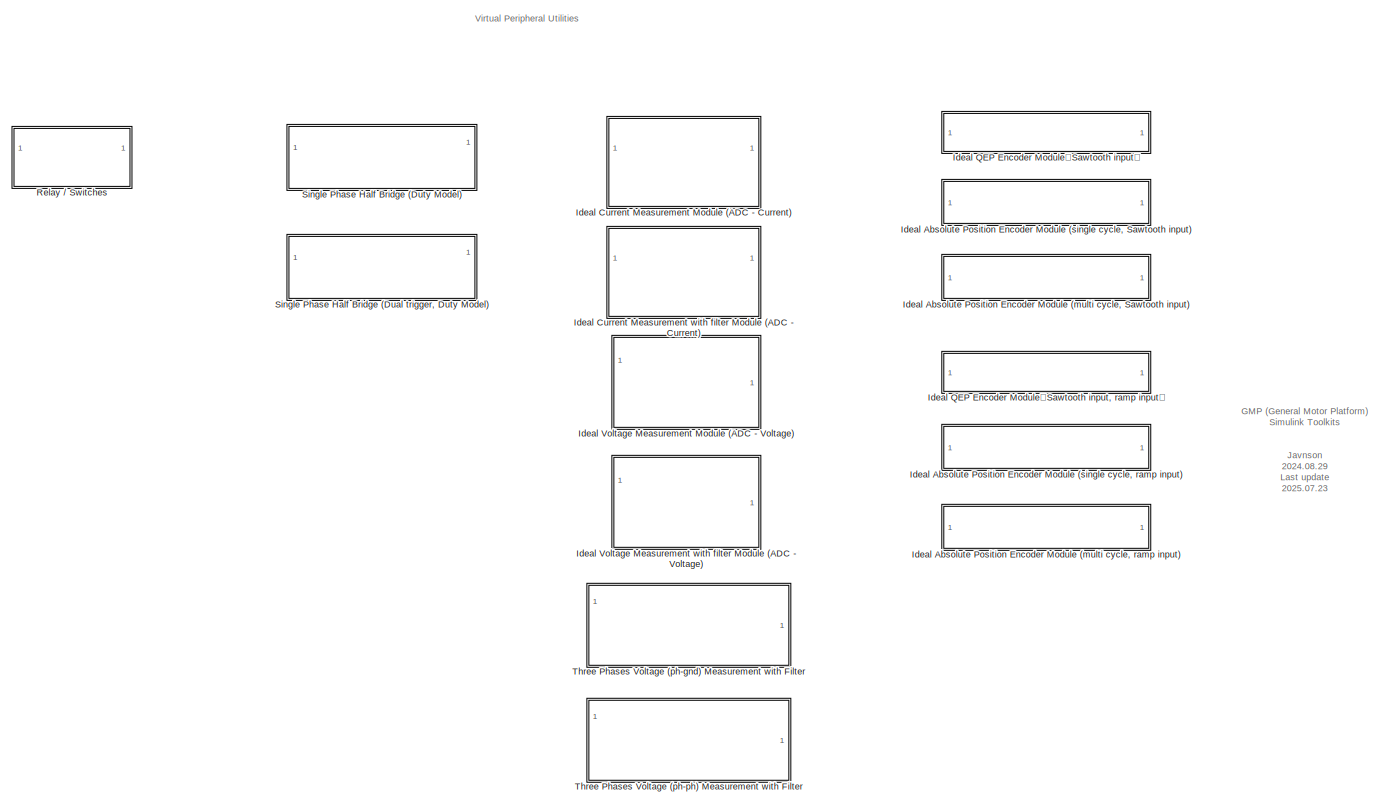
[diagram: root canvas - part 1/1, most of the canvas]
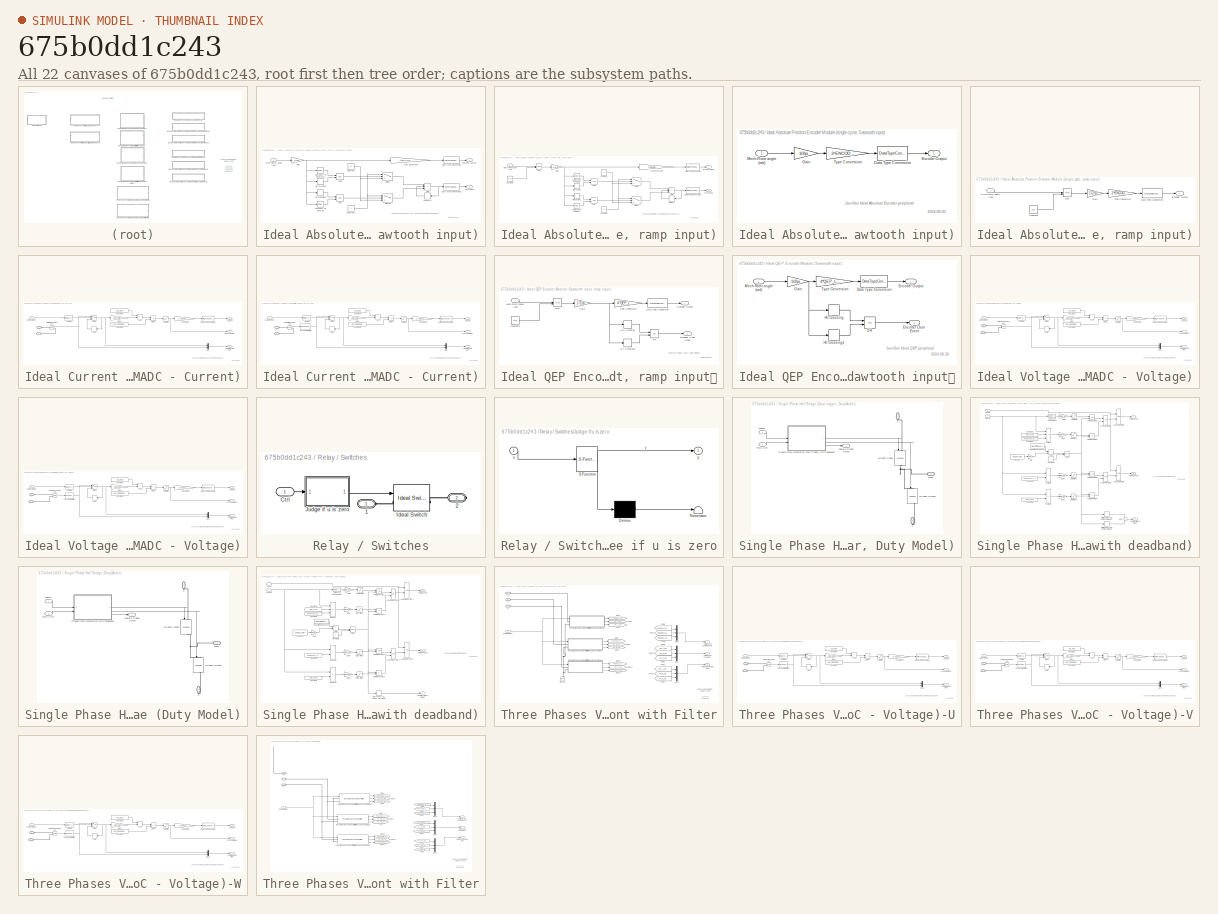
[diagram: thumbnail index - all 22 canvases of the model, root first then tree order]
MODEL slx_675b0dd1c243
KIND library
CONFIG AbsTol = auto
CONFIG EnableMultiTasking = off
CONFIG FixedStep = auto
CONFIG MaxStep = auto
CONFIG MinStep = auto
CONFIG RelTol = 1e-3
CONFIG SampleTimeConstraint = Unconstrained
CONFIG SolverName = VariableStepAuto
CONFIG StartTime = 0.0
CONFIG StopTime = 10.0
BLOCK [SubSystem] Ideal Absolute Position Encoder Module (multi cycle, Sawtooth input)
BLOCK [Logic] Ideal Absolute Position Encoder Module (multi cycle, Sawtooth input)/AND
  AllPortsSameDT = off
  IconShape = distinctive
  OutDataTypeStr = boolean
BLOCK [Logic] Ideal Absolute Position Encoder Module (multi cycle, Sawtooth input)/AND1
  AllPortsSameDT = off
  IconShape = distinctive
  OutDataTypeStr = boolean
BLOCK [Sum] Ideal Absolute Position Encoder Module (multi cycle, Sawtooth input)/Add
  IconShape = rectangular
  Inputs = ++-
BLOCK [Reference] Ideal Absolute Position Encoder Module (multi cycle, Sawtooth input)/Compare To Constant  REF=simulink/Logic and Bit
Operations/Compare
To Constant
  SourceBlock = simulink/Logic and Bit\nOperations/Compare\nTo Constant
  SourceType = Compare To Constant
BLOCK [Reference] Ideal Absolute Position Encoder Module (multi cycle, Sawtooth input)/Compare To Constant1  REF=simulink/Logic and Bit
Operations/Compare
To Constant
  SourceBlock = simulink/Logic and Bit\nOperations/Compare\nTo Constant
  SourceType = Compare To Constant
BLOCK [Constant] Ideal Absolute Position Encoder Module (multi cycle, Sawtooth input)/Constant
  Value = 0
BLOCK [Constant] Ideal Absolute Position Encoder Module (multi cycle, Sawtooth input)/Constant1
BLOCK [DataTypeConversion] Ideal Absolute Position Encoder Module (multi cycle, Sawtooth input)/Data Type Conversion
  OutDataTypeStr = uint32
  RndMeth = Floor
  SaturateOnIntegerOverflow = off
BLOCK [DataTypeConversion] Ideal Absolute Position Encoder Module (multi cycle, Sawtooth input)/Data Type Conversion1
  OutDataTypeStr = int32
  RndMeth = Floor
  SaturateOnIntegerOverflow = off
BLOCK [Outport] Ideal Absolute Position Encoder Module (multi cycle, Sawtooth input)/Encoder Output
BLOCK [Gain] Ideal Absolute Position Encoder Module (multi cycle, Sawtooth input)/Gain
  Gain = 1/2/pi
BLOCK [HitCross] Ideal Absolute Position Encoder Module (multi cycle, Sawtooth input)/Hit Crossing
  HitCrossingDirection = falling
  HitCrossingOffset = 0.5
BLOCK [HitCross] Ideal Absolute Position Encoder Module (multi cycle, Sawtooth input)/Hit Crossing1
  HitCrossingDirection = rising
  HitCrossingOffset = 0.5
BLOCK [Inport] Ideal Absolute Position Encoder Module (multi cycle, Sawtooth input)/Mech-Rotor angle (rad)
BLOCK [Memory] Ideal Absolute Position Encoder Module (multi cycle, Sawtooth input)/Memory
BLOCK [Switch] Ideal Absolute Position Encoder Module (multi cycle, Sawtooth input)/Switch
  Criteria = u2 > Threshold
  InputSameDT = off
  SaturateOnIntegerOverflow = off
  Threshold = 0.5
BLOCK [Switch] Ideal Absolute Position Encoder Module (multi cycle, Sawtooth input)/Switch1
  Criteria = u2 > Threshold
  InputSameDT = off
  SaturateOnIntegerOverflow = off
  Threshold = 0.5
BLOCK [Outport] Ideal Absolute Position Encoder Module (multi cycle, Sawtooth input)/Turn Count
  Port = 2
BLOCK [Gain] Ideal Absolute Position Encoder Module (multi cycle, Sawtooth input)/Type Conversion
  Gain = 2^ENCODER_BIT
BLOCK [SubSystem] Ideal Absolute Position Encoder Module (multi cycle, ramp input)
BLOCK [Logic] Ideal Absolute Position Encoder Module (multi cycle, ramp input)/AND
  AllPortsSameDT = off
  IconShape = distinctive
  OutDataTypeStr = boolean
BLOCK [Logic] Ideal Absolute Position Encoder Module (multi cycle, ramp input)/AND1
  AllPortsSameDT = off
  IconShape = distinctive
  OutDataTypeStr = boolean
BLOCK [Sum] Ideal Absolute Position Encoder Module (multi cycle, ramp input)/Add
  IconShape = rectangular
  Inputs = ++-
BLOCK [Reference] Ideal Absolute Position Encoder Module (multi cycle, ramp input)/Compare To Constant  REF=simulink/Logic and Bit
Operations/Compare
To Constant
  SourceBlock = simulink/Logic and Bit\nOperations/Compare\nTo Constant
  SourceType = Compare To Constant
BLOCK [Reference] Ideal Absolute Position Encoder Module (multi cycle, ramp input)/Compare To Constant1  REF=simulink/Logic and Bit
Operations/Compare
To Constant
  SourceBlock = simulink/Logic and Bit\nOperations/Compare\nTo Constant
  SourceType = Compare To Constant
BLOCK [Constant] Ideal Absolute Position Encoder Module (multi cycle, ramp input)/Constant
  Value = 0
BLOCK [Constant] Ideal Absolute Position Encoder Module (multi cycle, ramp input)/Constant1
BLOCK [Constant] Ideal Absolute Position Encoder Module (multi cycle, ramp input)/Constant2
  Value = 2*pi
BLOCK [DataTypeConversion] Ideal Absolute Position Encoder Module (multi cycle, ramp input)/Data Type Conversion
  OutDataTypeStr = uint32
  RndMeth = Floor
  SaturateOnIntegerOverflow = off
BLOCK [DataTypeConversion] Ideal Absolute Position Encoder Module (multi cycle, ramp input)/Data Type Conversion1
  OutDataTypeStr = int32
  RndMeth = Floor
  SaturateOnIntegerOverflow = off
BLOCK [Outport] Ideal Absolute Position Encoder Module (multi cycle, ramp input)/Encoder Output
BLOCK [Gain] Ideal Absolute Position Encoder Module (multi cycle, ramp input)/Gain
  Gain = 1/2/pi
BLOCK [HitCross] Ideal Absolute Position Encoder Module (multi cycle, ramp input)/Hit Crossing
  HitCrossingDirection = falling
  HitCrossingOffset = 0.5
BLOCK [HitCross] Ideal Absolute Position Encoder Module (multi cycle, ramp input)/Hit Crossing1
  HitCrossingDirection = rising
  HitCrossingOffset = 0.5
BLOCK [Inport] Ideal Absolute Position Encoder Module (multi cycle, ramp input)/Mech-Rotor angle (rad)
BLOCK [Memory] Ideal Absolute Position Encoder Module (multi cycle, ramp input)/Memory
BLOCK [Math] Ideal Absolute Position Encoder Module (multi cycle, ramp input)/Mod
  Operator = mod
BLOCK [Switch] Ideal Absolute Position Encoder Module (multi cycle, ramp input)/Switch
  Criteria = u2 > Threshold
  InputSameDT = off
  SaturateOnIntegerOverflow = off
  Threshold = 0.5
BLOCK [Switch] Ideal Absolute Position Encoder Module (multi cycle, ramp input)/Switch1
  Criteria = u2 > Threshold
  InputSameDT = off
  SaturateOnIntegerOverflow = off
  Threshold = 0.5
BLOCK [Outport] Ideal Absolute Position Encoder Module (multi cycle, ramp input)/Turn Count
  Port = 2
BLOCK [Gain] Ideal Absolute Position Encoder Module (multi cycle, ramp input)/Type Conversion
  Gain = 2^ENCODER_BIT
BLOCK [SubSystem] Ideal Absolute Position Encoder Module (single cycle, Sawtooth input)
BLOCK [DataTypeConversion] Ideal Absolute Position Encoder Module (single cycle, Sawtooth input)/Data Type Conversion
  OutDataTypeStr = uint32
  RndMeth = Floor
  SaturateOnIntegerOverflow = off
BLOCK [Outport] Ideal Absolute Position Encoder Module (single cycle, Sawtooth input)/Encoder Output
BLOCK [Gain] Ideal Absolute Position Encoder Module (single cycle, Sawtooth input)/Gain
  Gain = 1/2/pi
BLOCK [Inport] Ideal Absolute Position Encoder Module (single cycle, Sawtooth input)/Mech-Rotor angle (rad)
BLOCK [Gain] Ideal Absolute Position Encoder Module (single cycle, Sawtooth input)/Type Conversion
  Gain = 2^ENCODER_BIT
BLOCK [SubSystem] Ideal Absolute Position Encoder Module (single cycle, ramp input)
BLOCK [Constant] Ideal Absolute Position Encoder Module (single cycle, ramp input)/Constant
  Value = 2*pi
BLOCK [DataTypeConversion] Ideal Absolute Position Encoder Module (single cycle, ramp input)/Data Type Conversion
  OutDataTypeStr = uint32
  RndMeth = Floor
  SaturateOnIntegerOverflow = off
BLOCK [Inport] Ideal Absolute Position Encoder Module (single cycle, ramp input)/Elec-Rotor angle (rad)
BLOCK [Outport] Ideal Absolute Position Encoder Module (single cycle, ramp input)/Encoder Output
BLOCK [Gain] Ideal Absolute Position Encoder Module (single cycle, ramp input)/Gain
  Gain = 1/2/pi
BLOCK [Math] Ideal Absolute Position Encoder Module (single cycle, ramp input)/Mod
  Operator = mod
BLOCK [Gain] Ideal Absolute Position Encoder Module (single cycle, ramp input)/Type Conversion
  Gain = 2^ENCODER_BIT
BLOCK [SubSystem] Ideal Current Measurement Module (ADC - Current)
BLOCK [PMIOPort] Ideal Current Measurement Module (ADC - Current)/+
  Side = Left
BLOCK [PMIOPort] Ideal Current Measurement Module (ADC - Current)/-
  NameLocation = top
  Port = 2
  Side = Right
BLOCK [Outport] Ideal Current Measurement Module (ADC - Current)/ADC OUT
BLOCK [Sum] Ideal Current Measurement Module (ADC - Current)/Add
  IconShape = rectangular
BLOCK [Constant] Ideal Current Measurement Module (ADC - Current)/Constant4
  Value = ADC_BIAS
BLOCK [Constant] Ideal Current Measurement Module (ADC - Current)/Constant5
  Value = ADC_REFERENCE
BLOCK [Reference] Ideal Current Measurement Module (ADC - Current)/Current Measurement  REF=spsCurrentMeasurementLib/Current Measurement
  LibrarySourceBlock = sps_lib/Sensors and Measurements/Current Measurement
  SourceBlock = spsCurrentMeasurementLib/Current Measurement
  SourceType = Current Measurement
  UserDataPersistent = on
BLOCK [DataTypeConversion] Ideal Current Measurement Module (ADC - Current)/Data Type Conversion
  ConvertRealWorld = Stored Integer (SI)
  OutDataTypeStr = uint32
  RndMeth = Floor
  SaturateOnIntegerOverflow = off
BLOCK [Product] Ideal Current Measurement Module (ADC - Current)/Divide
  Inputs = */
BLOCK [Gain] Ideal Current Measurement Module (ADC - Current)/Gain1
  Gain = ADC_GAIN
BLOCK [Memory] Ideal Current Measurement Module (ADC - Current)/Hold
  InitialCondition = ADC_INIT
  LinearizeAsDelay = on
  NameLocation = top
BLOCK [Mux] Ideal Current Measurement Module (ADC - Current)/Mux
  DisplayOption = bar
  Inputs = 2
BLOCK [Gain] Ideal Current Measurement Module (ADC - Current)/Quantization
  Gain = 2^ADC_BIT
BLOCK [DataTypeConversion] Ideal Current Measurement Module (ADC - Current)/Sample
  OutDataTypeStr = boolean
  RndMeth = Floor
  SaturateOnIntegerOverflow = off
BLOCK [Outport] Ideal Current Measurement Module (ADC - Current)/Sample & Hold View
  Port = 3
BLOCK [Inport] Ideal Current Measurement Module (ADC - Current)/Sample Trigger
BLOCK [Saturate] Ideal Current Measurement Module (ADC - Current)/Saturation
  LowerLimit = 0
  UpperLimit = 1
BLOCK [Outport] Ideal Current Measurement Module (ADC - Current)/Scope View (p.u.)
  Port = 2
BLOCK [Switch] Ideal Current Measurement Module (ADC - Current)/Switch
  Threshold = 0.5
BLOCK [SubSystem] Ideal Current Measurement with filter Module (ADC - Current)
BLOCK [PMIOPort] Ideal Current Measurement with filter Module (ADC - Current)/+
  Side = Left
BLOCK [PMIOPort] Ideal Current Measurement with filter Module (ADC - Current)/-
  NameLocation = top
  Port = 2
  Side = Right
BLOCK [Outport] Ideal Current Measurement with filter Module (ADC - Current)/ADC OUT
BLOCK [Sum] Ideal Current Measurement with filter Module (ADC - Current)/Add
  IconShape = rectangular
BLOCK [Constant] Ideal Current Measurement with filter Module (ADC - Current)/Constant4
  Value = ADC_BIAS
BLOCK [Constant] Ideal Current Measurement with filter Module (ADC - Current)/Constant5
  Value = ADC_REFERENCE
BLOCK [Reference] Ideal Current Measurement with filter Module (ADC - Current)/Current Measurement  REF=spsCurrentMeasurementLib/Current Measurement
  LibrarySourceBlock = sps_lib/Sensors and Measurements/Current Measurement
  SourceBlock = spsCurrentMeasurementLib/Current Measurement
  SourceType = Current Measurement
  UserDataPersistent = on
BLOCK [DataTypeConversion] Ideal Current Measurement with filter Module (ADC - Current)/Data Type Conversion
  ConvertRealWorld = Stored Integer (SI)
  OutDataTypeStr = uint32
  RndMeth = Floor
  SaturateOnIntegerOverflow = off
BLOCK [Product] Ideal Current Measurement with filter Module (ADC - Current)/Divide
  Inputs = */
BLOCK [Gain] Ideal Current Measurement with filter Module (ADC - Current)/Gain1
  Gain = ADC_GAIN
BLOCK [Memory] Ideal Current Measurement with filter Module (ADC - Current)/Hold
  InitialCondition = ADC_INIT
  LinearizeAsDelay = on
  NameLocation = top
BLOCK [Mux] Ideal Current Measurement with filter Module (ADC - Current)/Mux
  DisplayOption = bar
  Inputs = 2
BLOCK [Gain] Ideal Current Measurement with filter Module (ADC - Current)/Quantization
  Gain = 2^ADC_BIT
BLOCK [DataTypeConversion] Ideal Current Measurement with filter Module (ADC - Current)/Sample
  OutDataTypeStr = boolean
  RndMeth = Floor
  SaturateOnIntegerOverflow = off
BLOCK [Outport] Ideal Current Measurement with filter Module (ADC - Current)/Sample & Hold View
  Port = 3
BLOCK [Inport] Ideal Current Measurement with filter Module (ADC - Current)/Sample Trigger
BLOCK [Saturate] Ideal Current Measurement with filter Module (ADC - Current)/Saturation
  LowerLimit = 0
  UpperLimit = 1
BLOCK [Outport] Ideal Current Measurement with filter Module (ADC - Current)/Scope View (p.u.)
  Port = 2
BLOCK [Reference] Ideal Current Measurement with filter Module (ADC - Current)/Second-Order Filter  REF=spsSecondOrderFilterLib/Second-Order
Filter
  LibrarySourceBlock = sps_lib/Control/Filters/Second-Order\nFilter
  SourceBlock = spsSecondOrderFilterLib/Second-Order\nFilter
  SourceType = Second-Order Filter
BLOCK [Switch] Ideal Current Measurement with filter Module (ADC - Current)/Switch
  Threshold = 0.5
BLOCK [SubSystem] Ideal QEP Encoder Module（Sawtooth input, ramp input）
BLOCK [Constant] Ideal QEP Encoder Module（Sawtooth input, ramp input）/Constant2
  Value = 2*pi
BLOCK [DataTypeConversion] Ideal QEP Encoder Module（Sawtooth input, ramp input）/Data Type Conversion
  OutDataTypeStr = uint32
  RndMeth = Floor
  SaturateOnIntegerOverflow = off
BLOCK [Outport] Ideal QEP Encoder Module（Sawtooth input, ramp input）/Encoder Clear Event
  Port = 2
BLOCK [Outport] Ideal QEP Encoder Module（Sawtooth input, ramp input）/Encoder Output
BLOCK [Gain] Ideal QEP Encoder Module（Sawtooth input, ramp input）/Gain
  Gain = 1/2/pi
BLOCK [HitCross] Ideal QEP Encoder Module（Sawtooth input, ramp input）/Hit Crossing
  HitCrossingDirection = rising
BLOCK [HitCross] Ideal QEP Encoder Module（Sawtooth input, ramp input）/Hit Crossing1
  HitCrossingDirection = falling
  HitCrossingOffset = 1
BLOCK [Inport] Ideal QEP Encoder Module（Sawtooth input, ramp input）/Mech-Rotor angle (rad)
BLOCK [Math] Ideal QEP Encoder Module（Sawtooth input, ramp input）/Mod
  Operator = mod
BLOCK [Logic] Ideal QEP Encoder Module（Sawtooth input, ramp input）/OR
  AllPortsSameDT = off
  IconShape = distinctive
  Operator = OR
  OutDataTypeStr = boolean
BLOCK [Gain] Ideal QEP Encoder Module（Sawtooth input, ramp input）/Type Conversion
  Gain = 4*QEP_LINE
BLOCK [SubSystem] Ideal QEP Encoder Module（Sawtooth input）
BLOCK [DataTypeConversion] Ideal QEP Encoder Module（Sawtooth input）/Data Type Conversion
  OutDataTypeStr = uint32
  RndMeth = Floor
  SaturateOnIntegerOverflow = off
BLOCK [Outport] Ideal QEP Encoder Module（Sawtooth input）/Encoder Clear Event
  Port = 2
BLOCK [Outport] Ideal QEP Encoder Module（Sawtooth input）/Encoder Output
BLOCK [Gain] Ideal QEP Encoder Module（Sawtooth input）/Gain
  Gain = 1/2/pi
BLOCK [HitCross] Ideal QEP Encoder Module（Sawtooth input）/Hit Crossing
  HitCrossingDirection = rising
BLOCK [HitCross] Ideal QEP Encoder Module（Sawtooth input）/Hit Crossing1
  HitCrossingDirection = falling
  HitCrossingOffset = 1
BLOCK [Inport] Ideal QEP Encoder Module（Sawtooth input）/Mech-Rotor angle (rad)
BLOCK [Logic] Ideal QEP Encoder Module（Sawtooth input）/OR
  AllPortsSameDT = off
  IconShape = distinctive
  Operator = OR
  OutDataTypeStr = boolean
BLOCK [Gain] Ideal QEP Encoder Module（Sawtooth input）/Type Conversion
  Gain = 4*QEP_LINE
BLOCK [SubSystem] Ideal Voltage Measurement Module (ADC - Voltage)
BLOCK [PMIOPort] Ideal Voltage Measurement Module (ADC - Voltage)/+
  Side = Left
BLOCK [PMIOPort] Ideal Voltage Measurement Module (ADC - Voltage)/-
  Port = 2
  Side = Left
BLOCK [Outport] Ideal Voltage Measurement Module (ADC - Voltage)/ADC OUT
BLOCK [Sum] Ideal Voltage Measurement Module (ADC - Voltage)/Add
  IconShape = rectangular
BLOCK [Constant] Ideal Voltage Measurement Module (ADC - Voltage)/Constant4
  Value = ADC_BIAS
BLOCK [Constant] Ideal Voltage Measurement Module (ADC - Voltage)/Constant5
  Value = ADC_REFERENCE
BLOCK [DataTypeConversion] Ideal Voltage Measurement Module (ADC - Voltage)/Data Type Conversion
  ConvertRealWorld = Stored Integer (SI)
  OutDataTypeStr = uint32
  RndMeth = Floor
  SaturateOnIntegerOverflow = off
BLOCK [Product] Ideal Voltage Measurement Module (ADC - Voltage)/Divide
  Inputs = */
BLOCK [Gain] Ideal Voltage Measurement Module (ADC - Voltage)/Gain1
  Gain = ADC_GAIN
BLOCK [Memory] Ideal Voltage Measurement Module (ADC - Voltage)/Hold
  InitialCondition = ADC_INIT
  LinearizeAsDelay = on
  NameLocation = top
BLOCK [Mux] Ideal Voltage Measurement Module (ADC - Voltage)/Mux1
  DisplayOption = bar
  Inputs = 2
BLOCK [Gain] Ideal Voltage Measurement Module (ADC - Voltage)/Quantization
  Gain = 2^ADC_BIT
BLOCK [DataTypeConversion] Ideal Voltage Measurement Module (ADC - Voltage)/Sample
  OutDataTypeStr = boolean
  RndMeth = Floor
  SaturateOnIntegerOverflow = off
BLOCK [Outport] Ideal Voltage Measurement Module (ADC - Voltage)/Sample & Hold View
  Port = 3
BLOCK [Inport] Ideal Voltage Measurement Module (ADC - Voltage)/Sample Trigger
BLOCK [Saturate] Ideal Voltage Measurement Module (ADC - Voltage)/Saturation
  LowerLimit = 0
  UpperLimit = 1
BLOCK [Outport] Ideal Voltage Measurement Module (ADC - Voltage)/Scope View (p.u.)
  Port = 2
BLOCK [Switch] Ideal Voltage Measurement Module (ADC - Voltage)/Switch
  Threshold = 0.5
BLOCK [Reference] Ideal Voltage Measurement Module (ADC - Voltage)/Voltage Measurement  REF=spsVoltageMeasurementLib/Voltage Measurement
  LibrarySourceBlock = sps_lib/Sensors and Measurements/Voltage Measurement
  SourceBlock = spsVoltageMeasurementLib/Voltage Measurement
  SourceType = Voltage Measurement
  UserDataPersistent = on
BLOCK [SubSystem] Ideal Voltage Measurement with filter Module (ADC - Voltage)
BLOCK [PMIOPort] Ideal Voltage Measurement with filter Module (ADC - Voltage)/+
  Side = Left
BLOCK [PMIOPort] Ideal Voltage Measurement with filter Module (ADC - Voltage)/-
  Port = 2
  Side = Left
BLOCK [Outport] Ideal Voltage Measurement with filter Module (ADC - Voltage)/ADC OUT
BLOCK [Sum] Ideal Voltage Measurement with filter Module (ADC - Voltage)/Add
  IconShape = rectangular
BLOCK [Constant] Ideal Voltage Measurement with filter Module (ADC - Voltage)/Constant4
  Value = ADC_BIAS
BLOCK [Constant] Ideal Voltage Measurement with filter Module (ADC - Voltage)/Constant5
  Value = ADC_REFERENCE
BLOCK [DataTypeConversion] Ideal Voltage Measurement with filter Module (ADC - Voltage)/Data Type Conversion
  ConvertRealWorld = Stored Integer (SI)
  OutDataTypeStr = uint32
  RndMeth = Floor
  SaturateOnIntegerOverflow = off
BLOCK [Product] Ideal Voltage Measurement with filter Module (ADC - Voltage)/Divide
  Inputs = */
BLOCK [Gain] Ideal Voltage Measurement with filter Module (ADC - Voltage)/Gain1
  Gain = ADC_GAIN
BLOCK [Memory] Ideal Voltage Measurement with filter Module (ADC - Voltage)/Hold
  InitialCondition = ADC_INIT
  LinearizeAsDelay = on
  NameLocation = top
BLOCK [Mux] Ideal Voltage Measurement with filter Module (ADC - Voltage)/Mux1
  DisplayOption = bar
  Inputs = 2
BLOCK [Gain] Ideal Voltage Measurement with filter Module (ADC - Voltage)/Quantization
  Gain = 2^ADC_BIT
BLOCK [DataTypeConversion] Ideal Voltage Measurement with filter Module (ADC - Voltage)/Sample
  OutDataTypeStr = boolean
  RndMeth = Floor
  SaturateOnIntegerOverflow = off
BLOCK [Outport] Ideal Voltage Measurement with filter Module (ADC - Voltage)/Sample & Hold View
  Port = 3
BLOCK [Inport] Ideal Voltage Measurement with filter Module (ADC - Voltage)/Sample Trigger
BLOCK [Saturate] Ideal Voltage Measurement with filter Module (ADC - Voltage)/Saturation
  LowerLimit = 0
  UpperLimit = 1
BLOCK [Outport] Ideal Voltage Measurement with filter Module (ADC - Voltage)/Scope View (p.u.)
  Port = 2
BLOCK [Reference] Ideal Voltage Measurement with filter Module (ADC - Voltage)/Second-Order Filter  REF=spsSecondOrderFilterLib/Second-Order
Filter
  LibrarySourceBlock = sps_lib/Control/Filters/Second-Order\nFilter
  SourceBlock = spsSecondOrderFilterLib/Second-Order\nFilter
  SourceType = Second-Order Filter
BLOCK [Switch] Ideal Voltage Measurement with filter Module (ADC - Voltage)/Switch
  Threshold = 0.5
BLOCK [Reference] Ideal Voltage Measurement with filter Module (ADC - Voltage)/Voltage Measurement  REF=spsVoltageMeasurementLib/Voltage Measurement
  LibrarySourceBlock = sps_lib/Sensors and Measurements/Voltage Measurement
  SourceBlock = spsVoltageMeasurementLib/Voltage Measurement
  SourceType = Voltage Measurement
  UserDataPersistent = on
BLOCK [SubSystem] Relay // Switches
  PortSchema = {"entries":[{"content":{"sides":[{"content":{"connectorIds":["LConn1"]},"type":"ConnectorPlacement.EquallySpacedRectSide","uuid":"9dde2428-8269-4b4d-be6d-a1d6850e2531"},{"content":{"connectorIds":["RConn1"],"side":"RIGHT"},"type":"ConnectorPlacement.EquallySpacedRectSide","uuid":"e8467c17-67d2-4853-85db-d5ebf6f237f2"},{"content":{"connectorIds":["In1"],"side":"TOP"},"type":"ConnectorPlacement.Equa...<+250ch>
BLOCK [PMIOPort] Relay // Switches/1
  Side = Left
BLOCK [PMIOPort] Relay // Switches/2
  Port = 2
  Side = Right
BLOCK [Inport] Relay // Switches/Ctrl
BLOCK [Reference] Relay // Switches/Ideal Switch  REF=spsIdealSwitchLib/Ideal Switch
  LibrarySourceBlock = sps_lib/Power Electronics/Ideal Switch
  SourceBlock = spsIdealSwitchLib/Ideal Switch
  SourceType = Ideal Switch
BLOCK [SubSystem] Relay // Switches/Judge if u is zero
  ErrorFcn = Stateflow.Translate.translate
  PermitHierarchicalResolution = ExplicitOnly
  SFBlockType = MATLAB Function
  TreatAsAtomicUnit = on
BLOCK [Demux] Relay // Switches/Judge if u is zero/ Demux 
  Outputs = 1
BLOCK [S-Function] Relay // Switches/Judge if u is zero/ SFunction 
  EnableBusSupport = off
  FunctionName = sf_sfun
  PortCounts = [1 2]
  SFcnIsStateOwnerBlock = off
  SFunctionDeploymentMode = off
  Tag = Stateflow S-Function 2
BLOCK [Terminator] Relay // Switches/Judge if u is zero/ Terminator 
BLOCK [Inport] Relay // Switches/Judge if u is zero/u
BLOCK [Outport] Relay // Switches/Judge if u is zero/y
BLOCK [SubSystem] Single Phase Half Bridge (Dual trigger, Duty Model)
  PortSchema = {"entries":[{"content":{"sides":[{"content":{"connectorIds":["In1","In2"]},"type":"ConnectorPlacement.EquallySpacedRectSide","uuid":"20beeabc-b0ca-4337-b227-c7f02abd15d8"},{"content":{"connectorIds":["Out1","RConn1"],"side":"RIGHT"},"type":"ConnectorPlacement.EquallySpacedRectSide","uuid":"a7923383-ac55-4621-ad1d-4d067c1fb84d"},{"content":{"connectorIds":["LConn1"],"side":"TOP"},"type":"ConnectorP...<+415ch>
BLOCK [PMIOPort] Single Phase Half Bridge (Dual trigger, Duty Model)/D
  NameLocation = left
  Side = Left
BLOCK [Inport] Single Phase Half Bridge (Dual trigger, Duty Model)/Enable
BLOCK [Reference] Single Phase Half Bridge (Dual trigger, Duty Model)/MOSFET LOWER  REF=spsMosfetLib/Mosfet
  NameLocation = left
  SourceBlock = spsMosfetLib/Mosfet
  SourceType = Mosfet
BLOCK [Reference] Single Phase Half Bridge (Dual trigger, Duty Model)/MOSFET UPPER  REF=spsMosfetLib/Mosfet
  NameLocation = left
  SourceBlock = spsMosfetLib/Mosfet
  SourceType = Mosfet
BLOCK [Inport] Single Phase Half Bridge (Dual trigger, Duty Model)/PWM CMP
  Port = 2
BLOCK [PMIOPort] Single Phase Half Bridge (Dual trigger, Duty Model)/Phase
  Port = 2
  Side = Right
BLOCK [PMIOPort] Single Phase Half Bridge (Dual trigger, Duty Model)/S
  NameLocation = left
  Port = 3
  Side = Right
BLOCK [Outport] Single Phase Half Bridge (Dual trigger, Duty Model)/Sample Trigger Output
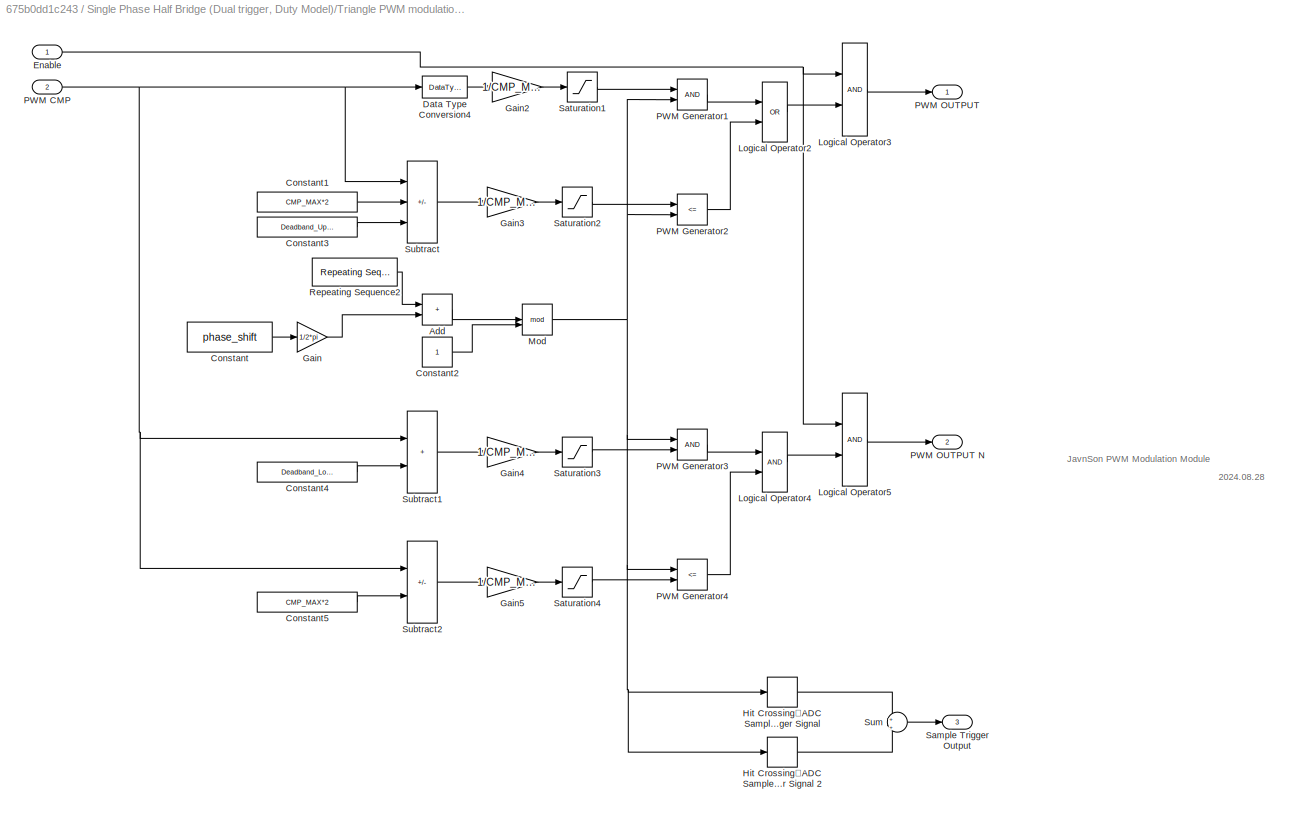
BLOCK [SubSystem] Single Phase Half Bridge (Dual trigger, Duty Model)/Triangle PWM modulation (dual trigger, with deadband)
BLOCK [Sum] Single Phase Half Bridge (Dual trigger, Duty Model)/Triangle PWM modulation (dual trigger, with deadband)/Add
  IconShape = rectangular
BLOCK [Constant] Single Phase Half Bridge (Dual trigger, Duty Model)/Triangle PWM modulation (dual trigger, with deadband)/Constant
  Value = phase_shift
BLOCK [Constant] Single Phase Half Bridge (Dual trigger, Duty Model)/Triangle PWM modulation (dual trigger, with deadband)/Constant1
  Value = CMP_MAX*2
BLOCK [Constant] Single Phase Half Bridge (Dual trigger, Duty Model)/Triangle PWM modulation (dual trigger, with deadband)/Constant2
BLOCK [Constant] Single Phase Half Bridge (Dual trigger, Duty Model)/Triangle PWM modulation (dual trigger, with deadband)/Constant3
  Value = Deadband_Upper
BLOCK [Constant] Single Phase Half Bridge (Dual trigger, Duty Model)/Triangle PWM modulation (dual trigger, with deadband)/Constant4
  Value = Deadband_Lower
BLOCK [Constant] Single Phase Half Bridge (Dual trigger, Duty Model)/Triangle PWM modulation (dual trigger, with deadband)/Constant5
  Value = CMP_MAX*2
BLOCK [DataTypeConversion] Single Phase Half Bridge (Dual trigger, Duty Model)/Triangle PWM modulation (dual trigger, with deadband)/Data Type Conversion4
  OutDataTypeStr = double
  RndMeth = Floor
  SaturateOnIntegerOverflow = off
BLOCK [Inport] Single Phase Half Bridge (Dual trigger, Duty Model)/Triangle PWM modulation (dual trigger, with deadband)/Enable
BLOCK [Gain] Single Phase Half Bridge (Dual trigger, Duty Model)/Triangle PWM modulation (dual trigger, with deadband)/Gain
  Gain = 1/2*pi
BLOCK [Gain] Single Phase Half Bridge (Dual trigger, Duty Model)/Triangle PWM modulation (dual trigger, with deadband)/Gain2
  Gain = 1/CMP_MAX/2
BLOCK [Gain] Single Phase Half Bridge (Dual trigger, Duty Model)/Triangle PWM modulation (dual trigger, with deadband)/Gain3
  Gain = 1/CMP_MAX/2
BLOCK [Gain] Single Phase Half Bridge (Dual trigger, Duty Model)/Triangle PWM modulation (dual trigger, with deadband)/Gain4
  Gain = 1/CMP_MAX/2
BLOCK [Gain] Single Phase Half Bridge (Dual trigger, Duty Model)/Triangle PWM modulation (dual trigger, with deadband)/Gain5
  Gain = 1/CMP_MAX/2
BLOCK [HitCross] Single Phase Half Bridge (Dual trigger, Duty Model)/Triangle PWM modulation (dual trigger, with deadband)/Hit Crossing：ADC Sample Trigger Signal
  HitCrossingDirection = rising
  HitCrossingOffset = 0.5
BLOCK [HitCross] Single Phase Half Bridge (Dual trigger, Duty Model)/Triangle PWM modulation (dual trigger, with deadband)/Hit Crossing：ADC Sample Trigger Signal 2
  HitCrossingDirection = falling
  HitCrossingOffset = 0.5
BLOCK [Logic] Single Phase Half Bridge (Dual trigger, Duty Model)/Triangle PWM modulation (dual trigger, with deadband)/Logical Operator2
  AllPortsSameDT = off
  Operator = OR
  OutDataTypeStr = boolean
BLOCK [Logic] Single Phase Half Bridge (Dual trigger, Duty Model)/Triangle PWM modulation (dual trigger, with deadband)/Logical Operator3
  AllPortsSameDT = off
  OutDataTypeStr = boolean
BLOCK [Logic] Single Phase Half Bridge (Dual trigger, Duty Model)/Triangle PWM modulation (dual trigger, with deadband)/Logical Operator4
  AllPortsSameDT = off
  OutDataTypeStr = boolean
BLOCK [Logic] Single Phase Half Bridge (Dual trigger, Duty Model)/Triangle PWM modulation (dual trigger, with deadband)/Logical Operator5
  AllPortsSameDT = off
  OutDataTypeStr = boolean
BLOCK [Math] Single Phase Half Bridge (Dual trigger, Duty Model)/Triangle PWM modulation (dual trigger, with deadband)/Mod
  Operator = mod
BLOCK [Inport] Single Phase Half Bridge (Dual trigger, Duty Model)/Triangle PWM modulation (dual trigger, with deadband)/PWM CMP
  Port = 2
BLOCK [RelationalOperator] Single Phase Half Bridge (Dual trigger, Duty Model)/Triangle PWM modulation (dual trigger, with deadband)/PWM Generator1
  InputSameDT = off
  OutDataTypeStr = boolean
BLOCK [RelationalOperator] Single Phase Half Bridge (Dual trigger, Duty Model)/Triangle PWM modulation (dual trigger, with deadband)/PWM Generator2
  InputSameDT = off
  Operator = <=
  OutDataTypeStr = boolean
BLOCK [RelationalOperator] Single Phase Half Bridge (Dual trigger, Duty Model)/Triangle PWM modulation (dual trigger, with deadband)/PWM Generator3
  InputSameDT = off
  OutDataTypeStr = boolean
BLOCK [RelationalOperator] Single Phase Half Bridge (Dual trigger, Duty Model)/Triangle PWM modulation (dual trigger, with deadband)/PWM Generator4
  InputSameDT = off
  Operator = <=
  OutDataTypeStr = boolean
BLOCK [Outport] Single Phase Half Bridge (Dual trigger, Duty Model)/Triangle PWM modulation (dual trigger, with deadband)/PWM OUTPUT
BLOCK [Outport] Single Phase Half Bridge (Dual trigger, Duty Model)/Triangle PWM modulation (dual trigger, with deadband)/PWM OUTPUT N
  Port = 2
BLOCK [Reference] Single Phase Half Bridge (Dual trigger, Duty Model)/Triangle PWM modulation (dual trigger, with deadband)/Repeating Sequence2  REF=simulink/Sources/Repeating
Sequence
  SourceBlock = simulink/Sources/Repeating\nSequence
  SourceType = Repeating table
BLOCK [Outport] Single Phase Half Bridge (Dual trigger, Duty Model)/Triangle PWM modulation (dual trigger, with deadband)/Sample Trigger Output
  Port = 3
BLOCK [Saturate] Single Phase Half Bridge (Dual trigger, Duty Model)/Triangle PWM modulation (dual trigger, with deadband)/Saturation1
  LowerLimit = 0
  UpperLimit = 1
BLOCK [Saturate] Single Phase Half Bridge (Dual trigger, Duty Model)/Triangle PWM modulation (dual trigger, with deadband)/Saturation2
  LowerLimit = 0
  UpperLimit = 1
BLOCK [Saturate] Single Phase Half Bridge (Dual trigger, Duty Model)/Triangle PWM modulation (dual trigger, with deadband)/Saturation3
  LowerLimit = 0
  UpperLimit = 1
BLOCK [Saturate] Single Phase Half Bridge (Dual trigger, Duty Model)/Triangle PWM modulation (dual trigger, with deadband)/Saturation4
  LowerLimit = 0
  UpperLimit = 1
BLOCK [Sum] Single Phase Half Bridge (Dual trigger, Duty Model)/Triangle PWM modulation (dual trigger, with deadband)/Subtract
  IconShape = rectangular
  Inputs = -++
BLOCK [Sum] Single Phase Half Bridge (Dual trigger, Duty Model)/Triangle PWM modulation (dual trigger, with deadband)/Subtract1
  IconShape = rectangular
BLOCK [Sum] Single Phase Half Bridge (Dual trigger, Duty Model)/Triangle PWM modulation (dual trigger, with deadband)/Subtract2
  IconShape = rectangular
  Inputs = -+
BLOCK [Sum] Single Phase Half Bridge (Dual trigger, Duty Model)/Triangle PWM modulation (dual trigger, with deadband)/Sum
  Inputs = +|+
BLOCK [SubSystem] Single Phase Half Bridge (Duty Model)
  PortSchema = {"entries":[{"content":{"sides":[{"content":{"connectorIds":["In1","In2"]},"type":"ConnectorPlacement.EquallySpacedRectSide","uuid":"20beeabc-b0ca-4337-b227-c7f02abd15d8"},{"content":{"connectorIds":["Out1","RConn1"],"side":"RIGHT"},"type":"ConnectorPlacement.EquallySpacedRectSide","uuid":"a7923383-ac55-4621-ad1d-4d067c1fb84d"},{"content":{"connectorIds":["LConn1"],"side":"TOP"},"type":"ConnectorP...<+415ch>
BLOCK [PMIOPort] Single Phase Half Bridge (Duty Model)/D
  NameLocation = left
  Side = Left
BLOCK [Inport] Single Phase Half Bridge (Duty Model)/Enable
BLOCK [Reference] Single Phase Half Bridge (Duty Model)/MOSFET LOWER  REF=spsMosfetLib/Mosfet
  LibrarySourceBlock = sps_lib/Power Electronics/Mosfet
  NameLocation = left
  SourceBlock = spsMosfetLib/Mosfet
  SourceType = Mosfet
BLOCK [Reference] Single Phase Half Bridge (Duty Model)/MOSFET UPPER  REF=spsMosfetLib/Mosfet
  LibrarySourceBlock = sps_lib/Power Electronics/Mosfet
  NameLocation = left
  SourceBlock = spsMosfetLib/Mosfet
  SourceType = Mosfet
BLOCK [Inport] Single Phase Half Bridge (Duty Model)/PWM CMP
  Port = 2
BLOCK [PMIOPort] Single Phase Half Bridge (Duty Model)/Phase
  Port = 2
  Side = Right
BLOCK [PMIOPort] Single Phase Half Bridge (Duty Model)/S
  NameLocation = left
  Port = 3
  Side = Right
BLOCK [Outport] Single Phase Half Bridge (Duty Model)/Sample Trigger Output
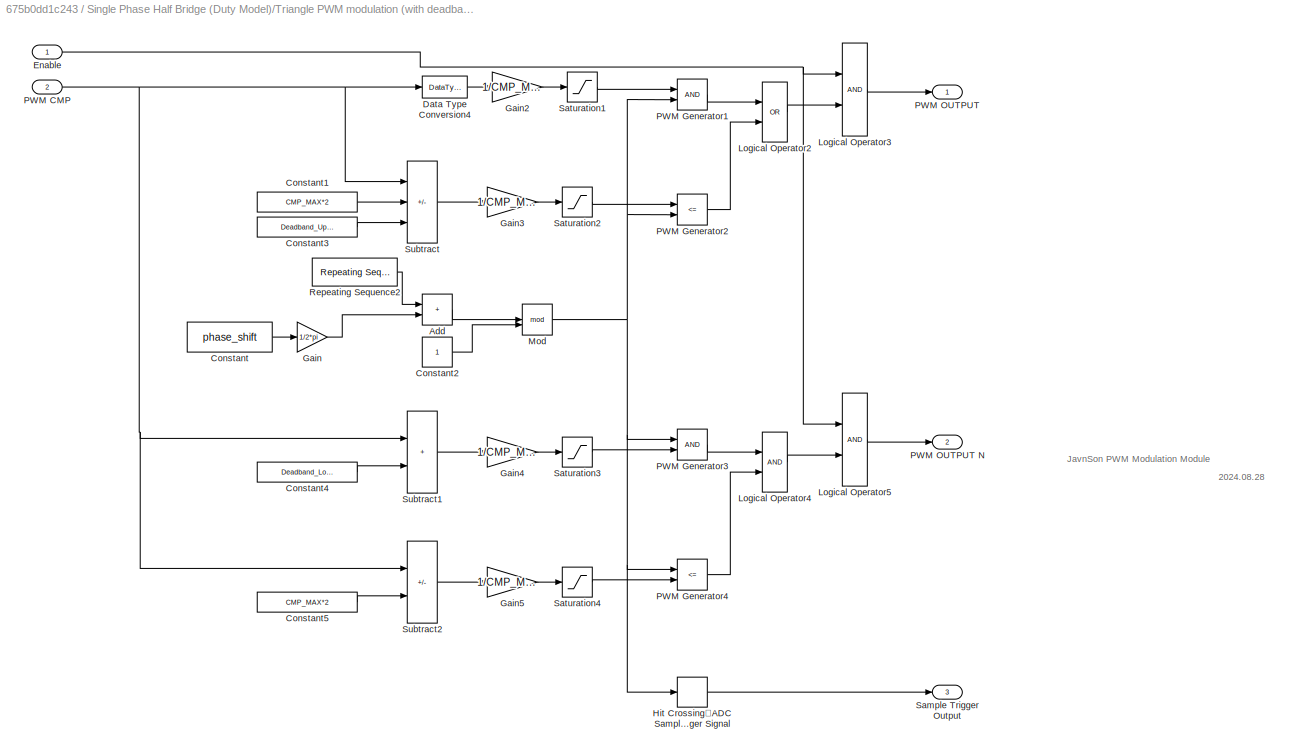
BLOCK [SubSystem] Single Phase Half Bridge (Duty Model)/Triangle PWM modulation (with deadband)
BLOCK [Sum] Single Phase Half Bridge (Duty Model)/Triangle PWM modulation (with deadband)/Add
  IconShape = rectangular
BLOCK [Constant] Single Phase Half Bridge (Duty Model)/Triangle PWM modulation (with deadband)/Constant
  Value = phase_shift
BLOCK [Constant] Single Phase Half Bridge (Duty Model)/Triangle PWM modulation (with deadband)/Constant1
  Value = CMP_MAX*2
BLOCK [Constant] Single Phase Half Bridge (Duty Model)/Triangle PWM modulation (with deadband)/Constant2
BLOCK [Constant] Single Phase Half Bridge (Duty Model)/Triangle PWM modulation (with deadband)/Constant3
  Value = Deadband_Upper
BLOCK [Constant] Single Phase Half Bridge (Duty Model)/Triangle PWM modulation (with deadband)/Constant4
  Value = Deadband_Lower
BLOCK [Constant] Single Phase Half Bridge (Duty Model)/Triangle PWM modulation (with deadband)/Constant5
  Value = CMP_MAX*2
BLOCK [DataTypeConversion] Single Phase Half Bridge (Duty Model)/Triangle PWM modulation (with deadband)/Data Type Conversion4
  OutDataTypeStr = double
  RndMeth = Floor
  SaturateOnIntegerOverflow = off
BLOCK [Inport] Single Phase Half Bridge (Duty Model)/Triangle PWM modulation (with deadband)/Enable
BLOCK [Gain] Single Phase Half Bridge (Duty Model)/Triangle PWM modulation (with deadband)/Gain
  Gain = 1/2*pi
BLOCK [Gain] Single Phase Half Bridge (Duty Model)/Triangle PWM modulation (with deadband)/Gain2
  Gain = 1/CMP_MAX/2
BLOCK [Gain] Single Phase Half Bridge (Duty Model)/Triangle PWM modulation (with deadband)/Gain3
  Gain = 1/CMP_MAX/2
BLOCK [Gain] Single Phase Half Bridge (Duty Model)/Triangle PWM modulation (with deadband)/Gain4
  Gain = 1/CMP_MAX/2
BLOCK [Gain] Single Phase Half Bridge (Duty Model)/Triangle PWM modulation (with deadband)/Gain5
  Gain = 1/CMP_MAX/2
BLOCK [HitCross] Single Phase Half Bridge (Duty Model)/Triangle PWM modulation (with deadband)/Hit Crossing：ADC Sample Trigger Signal
  HitCrossingDirection = rising
  HitCrossingOffset = 0.5
BLOCK [Logic] Single Phase Half Bridge (Duty Model)/Triangle PWM modulation (with deadband)/Logical Operator2
  AllPortsSameDT = off
  Operator = OR
  OutDataTypeStr = boolean
BLOCK [Logic] Single Phase Half Bridge (Duty Model)/Triangle PWM modulation (with deadband)/Logical Operator3
  AllPortsSameDT = off
  OutDataTypeStr = boolean
BLOCK [Logic] Single Phase Half Bridge (Duty Model)/Triangle PWM modulation (with deadband)/Logical Operator4
  AllPortsSameDT = off
  OutDataTypeStr = boolean
BLOCK [Logic] Single Phase Half Bridge (Duty Model)/Triangle PWM modulation (with deadband)/Logical Operator5
  AllPortsSameDT = off
  OutDataTypeStr = boolean
BLOCK [Math] Single Phase Half Bridge (Duty Model)/Triangle PWM modulation (with deadband)/Mod
  Operator = mod
BLOCK [Inport] Single Phase Half Bridge (Duty Model)/Triangle PWM modulation (with deadband)/PWM CMP
  Port = 2
BLOCK [RelationalOperator] Single Phase Half Bridge (Duty Model)/Triangle PWM modulation (with deadband)/PWM Generator1
  InputSameDT = off
  OutDataTypeStr = boolean
BLOCK [RelationalOperator] Single Phase Half Bridge (Duty Model)/Triangle PWM modulation (with deadband)/PWM Generator2
  InputSameDT = off
  Operator = <=
  OutDataTypeStr = boolean
BLOCK [RelationalOperator] Single Phase Half Bridge (Duty Model)/Triangle PWM modulation (with deadband)/PWM Generator3
  InputSameDT = off
  OutDataTypeStr = boolean
BLOCK [RelationalOperator] Single Phase Half Bridge (Duty Model)/Triangle PWM modulation (with deadband)/PWM Generator4
  InputSameDT = off
  Operator = <=
  OutDataTypeStr = boolean
BLOCK [Outport] Single Phase Half Bridge (Duty Model)/Triangle PWM modulation (with deadband)/PWM OUTPUT
BLOCK [Outport] Single Phase Half Bridge (Duty Model)/Triangle PWM modulation (with deadband)/PWM OUTPUT N
  Port = 2
BLOCK [Reference] Single Phase Half Bridge (Duty Model)/Triangle PWM modulation (with deadband)/Repeating Sequence2  REF=simulink/Sources/Repeating
Sequence
  SourceBlock = simulink/Sources/Repeating\nSequence
  SourceType = Repeating table
BLOCK [Outport] Single Phase Half Bridge (Duty Model)/Triangle PWM modulation (with deadband)/Sample Trigger Output
  Port = 3
BLOCK [Saturate] Single Phase Half Bridge (Duty Model)/Triangle PWM modulation (with deadband)/Saturation1
  LowerLimit = 0
  UpperLimit = 1
BLOCK [Saturate] Single Phase Half Bridge (Duty Model)/Triangle PWM modulation (with deadband)/Saturation2
  LowerLimit = 0
  UpperLimit = 1
BLOCK [Saturate] Single Phase Half Bridge (Duty Model)/Triangle PWM modulation (with deadband)/Saturation3
  LowerLimit = 0
  UpperLimit = 1
BLOCK [Saturate] Single Phase Half Bridge (Duty Model)/Triangle PWM modulation (with deadband)/Saturation4
  LowerLimit = 0
  UpperLimit = 1
BLOCK [Sum] Single Phase Half Bridge (Duty Model)/Triangle PWM modulation (with deadband)/Subtract
  IconShape = rectangular
  Inputs = -++
BLOCK [Sum] Single Phase Half Bridge (Duty Model)/Triangle PWM modulation (with deadband)/Subtract1
  IconShape = rectangular
BLOCK [Sum] Single Phase Half Bridge (Duty Model)/Triangle PWM modulation (with deadband)/Subtract2
  IconShape = rectangular
  Inputs = -+
BLOCK [SubSystem] Three Phases Voltage (ph-gnd) Measurement with Filter
  PortSchema = {"entries":[{"content":{"sides":[{"content":{"connectorIds":["In1"]},"type":"ConnectorPlacement.EquallySpacedRectSide","uuid":"ae4f4612-c092-4fa0-8a43-5c9e823110e3"},{"content":{"connectorIds":["Out1","Out2","Out3"],"side":"RIGHT"},"type":"ConnectorPlacement.EquallySpacedRectSide","uuid":"6db15ef0-d33a-4775-b4e6-14a566796673"},{"content":{"connectorIds":["LConn1","LConn2","LConn3"],"side":"TOP"},"...<+280ch>
BLOCK [From] Three Phases Voltage (ph-gnd) Measurement with Filter/From10
  GotoTag = Ph_B_pu
BLOCK [From] Three Phases Voltage (ph-gnd) Measurement with Filter/From11
  GotoTag = Ph_C_pu
BLOCK [From] Three Phases Voltage (ph-gnd) Measurement with Filter/From12
  GotoTag = Ph_A_HS
BLOCK [From] Three Phases Voltage (ph-gnd) Measurement with Filter/From13
  GotoTag = Ph_B_HS
BLOCK [From] Three Phases Voltage (ph-gnd) Measurement with Filter/From14
  GotoTag = Ph_C_HS
BLOCK [From] Three Phases Voltage (ph-gnd) Measurement with Filter/From6
  GotoTag = PhaseA_voltage
BLOCK [From] Three Phases Voltage (ph-gnd) Measurement with Filter/From7
  GotoTag = PhaseB_voltage
BLOCK [From] Three Phases Voltage (ph-gnd) Measurement with Filter/From8
  GotoTag = PhaseC_voltage
BLOCK [From] Three Phases Voltage (ph-gnd) Measurement with Filter/From9
  GotoTag = Ph_A_pu
BLOCK [Goto] Three Phases Voltage (ph-gnd) Measurement with Filter/Goto10
  GotoTag = PhaseC_voltage
BLOCK [Goto] Three Phases Voltage (ph-gnd) Measurement with Filter/Goto11
  GotoTag = Ph_C_pu
BLOCK [Goto] Three Phases Voltage (ph-gnd) Measurement with Filter/Goto12
  GotoTag = Ph_C_HS
BLOCK [Goto] Three Phases Voltage (ph-gnd) Measurement with Filter/Goto4
  GotoTag = PhaseA_voltage
BLOCK [Goto] Three Phases Voltage (ph-gnd) Measurement with Filter/Goto5
  GotoTag = Ph_A_pu
BLOCK [Goto] Three Phases Voltage (ph-gnd) Measurement with Filter/Goto6
  GotoTag = Ph_A_HS
BLOCK [Goto] Three Phases Voltage (ph-gnd) Measurement with Filter/Goto7
  GotoTag = PhaseB_voltage
BLOCK [Goto] Three Phases Voltage (ph-gnd) Measurement with Filter/Goto8
  GotoTag = Ph_B_pu
BLOCK [Goto] Three Phases Voltage (ph-gnd) Measurement with Filter/Goto9
  GotoTag = Ph_B_HS
BLOCK [Reference] Three Phases Voltage (ph-gnd) Measurement with Filter/Ground2  REF=spsGroundLib/Ground
  LibrarySourceBlock = sps_lib/Utilities/Ground
  NameLocation = right
  SourceBlock = spsGroundLib/Ground
  SourceType = Ground
BLOCK [SubSystem] Three Phases Voltage (ph-gnd) Measurement with Filter/Ideal Voltage Measurement with filter Module(ADC - Voltage)-U
BLOCK [PMIOPort] Three Phases Voltage (ph-gnd) Measurement with Filter/Ideal Voltage Measurement with filter Module(ADC - Voltage)-U/+
  Side = Left
BLOCK [PMIOPort] Three Phases Voltage (ph-gnd) Measurement with Filter/Ideal Voltage Measurement with filter Module(ADC - Voltage)-U/-
  Port = 2
  Side = Left
BLOCK [Outport] Three Phases Voltage (ph-gnd) Measurement with Filter/Ideal Voltage Measurement with filter Module(ADC - Voltage)-U/ADC OUT
BLOCK [Sum] Three Phases Voltage (ph-gnd) Measurement with Filter/Ideal Voltage Measurement with filter Module(ADC - Voltage)-U/Add
  IconShape = rectangular
BLOCK [Constant] Three Phases Voltage (ph-gnd) Measurement with Filter/Ideal Voltage Measurement with filter Module(ADC - Voltage)-U/Constant4
  Value = ADC_BIAS
BLOCK [Constant] Three Phases Voltage (ph-gnd) Measurement with Filter/Ideal Voltage Measurement with filter Module(ADC - Voltage)-U/Constant5
  Value = ADC_REFERENCE
BLOCK [DataTypeConversion] Three Phases Voltage (ph-gnd) Measurement with Filter/Ideal Voltage Measurement with filter Module(ADC - Voltage)-U/Data Type Conversion
  ConvertRealWorld = Stored Integer (SI)
  OutDataTypeStr = uint32
  RndMeth = Floor
  SaturateOnIntegerOverflow = off
BLOCK [Product] Three Phases Voltage (ph-gnd) Measurement with Filter/Ideal Voltage Measurement with filter Module(ADC - Voltage)-U/Divide
  Inputs = */
BLOCK [Gain] Three Phases Voltage (ph-gnd) Measurement with Filter/Ideal Voltage Measurement with filter Module(ADC - Voltage)-U/Gain1
  Gain = ADC_GAIN
BLOCK [Memory] Three Phases Voltage (ph-gnd) Measurement with Filter/Ideal Voltage Measurement with filter Module(ADC - Voltage)-U/Hold
  InitialCondition = ADC_INIT
  LinearizeAsDelay = on
  NameLocation = top
BLOCK [Mux] Three Phases Voltage (ph-gnd) Measurement with Filter/Ideal Voltage Measurement with filter Module(ADC - Voltage)-U/Mux1
  DisplayOption = bar
  Inputs = 2
BLOCK [Gain] Three Phases Voltage (ph-gnd) Measurement with Filter/Ideal Voltage Measurement with filter Module(ADC - Voltage)-U/Quantization
  Gain = 2^ADC_BIT
BLOCK [DataTypeConversion] Three Phases Voltage (ph-gnd) Measurement with Filter/Ideal Voltage Measurement with filter Module(ADC - Voltage)-U/Sample
  OutDataTypeStr = boolean
  RndMeth = Floor
  SaturateOnIntegerOverflow = off
BLOCK [Outport] Three Phases Voltage (ph-gnd) Measurement with Filter/Ideal Voltage Measurement with filter Module(ADC - Voltage)-U/Sample & Hold View
  Port = 3
BLOCK [Inport] Three Phases Voltage (ph-gnd) Measurement with Filter/Ideal Voltage Measurement with filter Module(ADC - Voltage)-U/Sample Trigger
BLOCK [Saturate] Three Phases Voltage (ph-gnd) Measurement with Filter/Ideal Voltage Measurement with filter Module(ADC - Voltage)-U/Saturation
  LowerLimit = 0
  UpperLimit = 1
BLOCK [Outport] Three Phases Voltage (ph-gnd) Measurement with Filter/Ideal Voltage Measurement with filter Module(ADC - Voltage)-U/Scope View (p.u.)
  Port = 2
BLOCK [Reference] Three Phases Voltage (ph-gnd) Measurement with Filter/Ideal Voltage Measurement with filter Module(ADC - Voltage)-U/Second-Order Filter  REF=spsSecondOrderFilterLib/Second-Order
Filter
  LibrarySourceBlock = sps_lib/Control/Filters/Second-Order\nFilter
  SourceBlock = spsSecondOrderFilterLib/Second-Order\nFilter
  SourceType = Second-Order Filter
BLOCK [Switch] Three Phases Voltage (ph-gnd) Measurement with Filter/Ideal Voltage Measurement with filter Module(ADC - Voltage)-U/Switch
  Threshold = 0.5
BLOCK [Reference] Three Phases Voltage (ph-gnd) Measurement with Filter/Ideal Voltage Measurement with filter Module(ADC - Voltage)-U/Voltage Measurement  REF=spsVoltageMeasurementLib/Voltage Measurement
  LibrarySourceBlock = sps_lib/Sensors and Measurements/Voltage Measurement
  SourceBlock = spsVoltageMeasurementLib/Voltage Measurement
  SourceType = Voltage Measurement
  UserDataPersistent = on
BLOCK [SubSystem] Three Phases Voltage (ph-gnd) Measurement with Filter/Ideal Voltage Measurement with filter Module(ADC - Voltage)-V
BLOCK [PMIOPort] Three Phases Voltage (ph-gnd) Measurement with Filter/Ideal Voltage Measurement with filter Module(ADC - Voltage)-V/+
  Side = Left
BLOCK [PMIOPort] Three Phases Voltage (ph-gnd) Measurement with Filter/Ideal Voltage Measurement with filter Module(ADC - Voltage)-V/-
  Port = 2
  Side = Left
BLOCK [Outport] Three Phases Voltage (ph-gnd) Measurement with Filter/Ideal Voltage Measurement with filter Module(ADC - Voltage)-V/ADC OUT
BLOCK [Sum] Three Phases Voltage (ph-gnd) Measurement with Filter/Ideal Voltage Measurement with filter Module(ADC - Voltage)-V/Add
  IconShape = rectangular
BLOCK [Constant] Three Phases Voltage (ph-gnd) Measurement with Filter/Ideal Voltage Measurement with filter Module(ADC - Voltage)-V/Constant4
  Value = ADC_BIAS
BLOCK [Constant] Three Phases Voltage (ph-gnd) Measurement with Filter/Ideal Voltage Measurement with filter Module(ADC - Voltage)-V/Constant5
  Value = ADC_REFERENCE
BLOCK [DataTypeConversion] Three Phases Voltage (ph-gnd) Measurement with Filter/Ideal Voltage Measurement with filter Module(ADC - Voltage)-V/Data Type Conversion
  ConvertRealWorld = Stored Integer (SI)
  OutDataTypeStr = uint32
  RndMeth = Floor
  SaturateOnIntegerOverflow = off
BLOCK [Product] Three Phases Voltage (ph-gnd) Measurement with Filter/Ideal Voltage Measurement with filter Module(ADC - Voltage)-V/Divide
  Inputs = */
BLOCK [Gain] Three Phases Voltage (ph-gnd) Measurement with Filter/Ideal Voltage Measurement with filter Module(ADC - Voltage)-V/Gain1
  Gain = ADC_GAIN
BLOCK [Memory] Three Phases Voltage (ph-gnd) Measurement with Filter/Ideal Voltage Measurement with filter Module(ADC - Voltage)-V/Hold
  InitialCondition = ADC_INIT
  LinearizeAsDelay = on
  NameLocation = top
BLOCK [Mux] Three Phases Voltage (ph-gnd) Measurement with Filter/Ideal Voltage Measurement with filter Module(ADC - Voltage)-V/Mux1
  DisplayOption = bar
  Inputs = 2
BLOCK [Gain] Three Phases Voltage (ph-gnd) Measurement with Filter/Ideal Voltage Measurement with filter Module(ADC - Voltage)-V/Quantization
  Gain = 2^ADC_BIT
BLOCK [DataTypeConversion] Three Phases Voltage (ph-gnd) Measurement with Filter/Ideal Voltage Measurement with filter Module(ADC - Voltage)-V/Sample
  OutDataTypeStr = boolean
  RndMeth = Floor
  SaturateOnIntegerOverflow = off
BLOCK [Outport] Three Phases Voltage (ph-gnd) Measurement with Filter/Ideal Voltage Measurement with filter Module(ADC - Voltage)-V/Sample & Hold View
  Port = 3
BLOCK [Inport] Three Phases Voltage (ph-gnd) Measurement with Filter/Ideal Voltage Measurement with filter Module(ADC - Voltage)-V/Sample Trigger
BLOCK [Saturate] Three Phases Voltage (ph-gnd) Measurement with Filter/Ideal Voltage Measurement with filter Module(ADC - Voltage)-V/Saturation
  LowerLimit = 0
  UpperLimit = 1
BLOCK [Outport] Three Phases Voltage (ph-gnd) Measurement with Filter/Ideal Voltage Measurement with filter Module(ADC - Voltage)-V/Scope View (p.u.)
  Port = 2
BLOCK [Reference] Three Phases Voltage (ph-gnd) Measurement with Filter/Ideal Voltage Measurement with filter Module(ADC - Voltage)-V/Second-Order Filter  REF=spsSecondOrderFilterLib/Second-Order
Filter
  LibrarySourceBlock = sps_lib/Control/Filters/Second-Order\nFilter
  SourceBlock = spsSecondOrderFilterLib/Second-Order\nFilter
  SourceType = Second-Order Filter
BLOCK [Switch] Three Phases Voltage (ph-gnd) Measurement with Filter/Ideal Voltage Measurement with filter Module(ADC - Voltage)-V/Switch
  Threshold = 0.5
BLOCK [Reference] Three Phases Voltage (ph-gnd) Measurement with Filter/Ideal Voltage Measurement with filter Module(ADC - Voltage)-V/Voltage Measurement  REF=spsVoltageMeasurementLib/Voltage Measurement
  LibrarySourceBlock = sps_lib/Sensors and Measurements/Voltage Measurement
  SourceBlock = spsVoltageMeasurementLib/Voltage Measurement
  SourceType = Voltage Measurement
  UserDataPersistent = on
BLOCK [SubSystem] Three Phases Voltage (ph-gnd) Measurement with Filter/Ideal Voltage Measurement with filter Module(ADC - Voltage)-W
BLOCK [PMIOPort] Three Phases Voltage (ph-gnd) Measurement with Filter/Ideal Voltage Measurement with filter Module(ADC - Voltage)-W/+
  Side = Left
BLOCK [PMIOPort] Three Phases Voltage (ph-gnd) Measurement with Filter/Ideal Voltage Measurement with filter Module(ADC - Voltage)-W/-
  Port = 2
  Side = Left
BLOCK [Outport] Three Phases Voltage (ph-gnd) Measurement with Filter/Ideal Voltage Measurement with filter Module(ADC - Voltage)-W/ADC OUT
BLOCK [Sum] Three Phases Voltage (ph-gnd) Measurement with Filter/Ideal Voltage Measurement with filter Module(ADC - Voltage)-W/Add
  IconShape = rectangular
BLOCK [Constant] Three Phases Voltage (ph-gnd) Measurement with Filter/Ideal Voltage Measurement with filter Module(ADC - Voltage)-W/Constant4
  Value = ADC_BIAS
BLOCK [Constant] Three Phases Voltage (ph-gnd) Measurement with Filter/Ideal Voltage Measurement with filter Module(ADC - Voltage)-W/Constant5
  Value = ADC_REFERENCE
BLOCK [DataTypeConversion] Three Phases Voltage (ph-gnd) Measurement with Filter/Ideal Voltage Measurement with filter Module(ADC - Voltage)-W/Data Type Conversion
  ConvertRealWorld = Stored Integer (SI)
  OutDataTypeStr = uint32
  RndMeth = Floor
  SaturateOnIntegerOverflow = off
BLOCK [Product] Three Phases Voltage (ph-gnd) Measurement with Filter/Ideal Voltage Measurement with filter Module(ADC - Voltage)-W/Divide
  Inputs = */
BLOCK [Gain] Three Phases Voltage (ph-gnd) Measurement with Filter/Ideal Voltage Measurement with filter Module(ADC - Voltage)-W/Gain1
  Gain = ADC_GAIN
BLOCK [Memory] Three Phases Voltage (ph-gnd) Measurement with Filter/Ideal Voltage Measurement with filter Module(ADC - Voltage)-W/Hold
  InitialCondition = ADC_INIT
  LinearizeAsDelay = on
  NameLocation = top
BLOCK [Mux] Three Phases Voltage (ph-gnd) Measurement with Filter/Ideal Voltage Measurement with filter Module(ADC - Voltage)-W/Mux1
  DisplayOption = bar
  Inputs = 2
BLOCK [Gain] Three Phases Voltage (ph-gnd) Measurement with Filter/Ideal Voltage Measurement with filter Module(ADC - Voltage)-W/Quantization
  Gain = 2^ADC_BIT
BLOCK [DataTypeConversion] Three Phases Voltage (ph-gnd) Measurement with Filter/Ideal Voltage Measurement with filter Module(ADC - Voltage)-W/Sample
  OutDataTypeStr = boolean
  RndMeth = Floor
  SaturateOnIntegerOverflow = off
BLOCK [Outport] Three Phases Voltage (ph-gnd) Measurement with Filter/Ideal Voltage Measurement with filter Module(ADC - Voltage)-W/Sample & Hold View
  Port = 3
BLOCK [Inport] Three Phases Voltage (ph-gnd) Measurement with Filter/Ideal Voltage Measurement with filter Module(ADC - Voltage)-W/Sample Trigger
BLOCK [Saturate] Three Phases Voltage (ph-gnd) Measurement with Filter/Ideal Voltage Measurement with filter Module(ADC - Voltage)-W/Saturation
  LowerLimit = 0
  UpperLimit = 1
BLOCK [Outport] Three Phases Voltage (ph-gnd) Measurement with Filter/Ideal Voltage Measurement with filter Module(ADC - Voltage)-W/Scope View (p.u.)
  Port = 2
BLOCK [Reference] Three Phases Voltage (ph-gnd) Measurement with Filter/Ideal Voltage Measurement with filter Module(ADC - Voltage)-W/Second-Order Filter  REF=spsSecondOrderFilterLib/Second-Order
Filter
  LibrarySourceBlock = sps_lib/Control/Filters/Second-Order\nFilter
  SourceBlock = spsSecondOrderFilterLib/Second-Order\nFilter
  SourceType = Second-Order Filter
BLOCK [Switch] Three Phases Voltage (ph-gnd) Measurement with Filter/Ideal Voltage Measurement with filter Module(ADC - Voltage)-W/Switch
  Threshold = 0.5
BLOCK [Reference] Three Phases Voltage (ph-gnd) Measurement with Filter/Ideal Voltage Measurement with filter Module(ADC - Voltage)-W/Voltage Measurement  REF=spsVoltageMeasurementLib/Voltage Measurement
  LibrarySourceBlock = sps_lib/Sensors and Measurements/Voltage Measurement
  SourceBlock = spsVoltageMeasurementLib/Voltage Measurement
  SourceType = Voltage Measurement
  UserDataPersistent = on
BLOCK [Mux] Three Phases Voltage (ph-gnd) Measurement with Filter/Mux3
  DisplayOption = bar
  Inputs = 3
BLOCK [Mux] Three Phases Voltage (ph-gnd) Measurement with Filter/Mux4
  DisplayOption = bar
  Inputs = 3
BLOCK [Mux] Three Phases Voltage (ph-gnd) Measurement with Filter/Mux5
  DisplayOption = bar
  Inputs = 3
BLOCK [Inport] Three Phases Voltage (ph-gnd) Measurement with Filter/Sample Trigger
BLOCK [PMIOPort] Three Phases Voltage (ph-gnd) Measurement with Filter/U
  Side = Left
BLOCK [PMIOPort] Three Phases Voltage (ph-gnd) Measurement with Filter/V
  Port = 2
  Side = Left
BLOCK [Outport] Three Phases Voltage (ph-gnd) Measurement with Filter/Voltage ADC Sample Result
BLOCK [Outport] Three Phases Voltage (ph-gnd) Measurement with Filter/Voltage ADC Scope(p.u.)
  Port = 2
BLOCK [Outport] Three Phases Voltage (ph-gnd) Measurement with Filter/Voltage Real Value & HS
  Port = 3
BLOCK [PMIOPort] Three Phases Voltage (ph-gnd) Measurement with Filter/W
  Port = 3
  Side = Left
BLOCK [SubSystem] Three Phases Voltage (ph-ph) Measurement with Filter
  PortSchema = {"entries":[{"content":{"sides":[{"content":{"connectorIds":["In1"]},"type":"ConnectorPlacement.EquallySpacedRectSide","uuid":"ae4f4612-c092-4fa0-8a43-5c9e823110e3"},{"content":{"connectorIds":["Out1","Out2","Out3"],"side":"RIGHT"},"type":"ConnectorPlacement.EquallySpacedRectSide","uuid":"6db15ef0-d33a-4775-b4e6-14a566796673"},{"content":{"connectorIds":["LConn1","LConn2","LConn3"],"side":"TOP"},"...<+280ch>
BLOCK [From] Three Phases Voltage (ph-ph) Measurement with Filter/From
  GotoTag = PhaseUV_voltage
BLOCK [From] Three Phases Voltage (ph-ph) Measurement with Filter/From1
  GotoTag = PhaseVW_voltage
BLOCK [From] Three Phases Voltage (ph-ph) Measurement with Filter/From2
  GotoTag = PhaseWU_voltage
BLOCK [From] Three Phases Voltage (ph-ph) Measurement with Filter/From3
  GotoTag = Ph_UV_pu
BLOCK [From] Three Phases Voltage (ph-ph) Measurement with Filter/From4
  GotoTag = Ph_VW_pu
BLOCK [From] Three Phases Voltage (ph-ph) Measurement with Filter/From5
  GotoTag = Ph_WU_pu
BLOCK [From] Three Phases Voltage (ph-ph) Measurement with Filter/From6
  GotoTag = Ph_UV_HS
BLOCK [From] Three Phases Voltage (ph-ph) Measurement with Filter/From7
  GotoTag = Ph_VW_HS
BLOCK [From] Three Phases Voltage (ph-ph) Measurement with Filter/From8
  GotoTag = Ph_WU_HS
BLOCK [Goto] Three Phases Voltage (ph-ph) Measurement with Filter/Goto10
  GotoTag = PhaseWU_voltage
BLOCK [Goto] Three Phases Voltage (ph-ph) Measurement with Filter/Goto11
  GotoTag = Ph_WU_pu
BLOCK [Goto] Three Phases Voltage (ph-ph) Measurement with Filter/Goto12
  GotoTag = Ph_WU_HS
BLOCK [Goto] Three Phases Voltage (ph-ph) Measurement with Filter/Goto4
  GotoTag = PhaseUV_voltage
BLOCK [Goto] Three Phases Voltage (ph-ph) Measurement with Filter/Goto5
  GotoTag = Ph_UV_pu
BLOCK [Goto] Three Phases Voltage (ph-ph) Measurement with Filter/Goto6
  GotoTag = Ph_UV_HS
BLOCK [Goto] Three Phases Voltage (ph-ph) Measurement with Filter/Goto7
  GotoTag = PhaseVW_voltage
BLOCK [Goto] Three Phases Voltage (ph-ph) Measurement with Filter/Goto8
  GotoTag = Ph_VW_pu
BLOCK [Goto] Three Phases Voltage (ph-ph) Measurement with Filter/Goto9
  GotoTag = Ph_VW_HS
BLOCK [Reference] Three Phases Voltage (ph-ph) Measurement with Filter/Ideal Voltage Measurement with filter Module(ADC - Voltage)-U  REF=$bdroot/Ideal Voltage Measurement with filter Module (ADC - Voltage)
  SourceBlock = $bdroot/Ideal Voltage Measurement with filter Module (ADC - Voltage)
BLOCK [Reference] Three Phases Voltage (ph-ph) Measurement with Filter/Ideal Voltage Measurement with filter Module(ADC - Voltage)-V  REF=$bdroot/Ideal Voltage Measurement with filter Module (ADC - Voltage)
  SourceBlock = $bdroot/Ideal Voltage Measurement with filter Module (ADC - Voltage)
BLOCK [Reference] Three Phases Voltage (ph-ph) Measurement with Filter/Ideal Voltage Measurement with filter Module(ADC - Voltage)-W  REF=$bdroot/Ideal Voltage Measurement with filter Module (ADC - Voltage)
  SourceBlock = $bdroot/Ideal Voltage Measurement with filter Module (ADC - Voltage)
BLOCK [Mux] Three Phases Voltage (ph-ph) Measurement with Filter/Mux3
  DisplayOption = bar
  Inputs = 3
BLOCK [Mux] Three Phases Voltage (ph-ph) Measurement with Filter/Mux4
  DisplayOption = bar
  Inputs = 3
BLOCK [Mux] Three Phases Voltage (ph-ph) Measurement with Filter/Mux5
  DisplayOption = bar
  Inputs = 3
BLOCK [Inport] Three Phases Voltage (ph-ph) Measurement with Filter/Sample Trigger
BLOCK [PMIOPort] Three Phases Voltage (ph-ph) Measurement with Filter/U
  Side = Left
BLOCK [PMIOPort] Three Phases Voltage (ph-ph) Measurement with Filter/V
  Port = 2
  Side = Left
BLOCK [Outport] Three Phases Voltage (ph-ph) Measurement with Filter/Voltage ADC Sample Result
BLOCK [Outport] Three Phases Voltage (ph-ph) Measurement with Filter/Voltage ADC Scope(p.u.)
  Port = 2
BLOCK [Outport] Three Phases Voltage (ph-ph) Measurement with Filter/Voltage Real Value & HS
  Port = 3
BLOCK [PMIOPort] Three Phases Voltage (ph-ph) Measurement with Filter/W
  Port = 3
  Side = Left
ANNOTATION (root): Virtual Peripheral Utilities
ANNOTATION (root): GMP (General Motor Platform) Simulink Toolkits
ANNOTATION (root): Javnson 2024.08.29 Last update 2025.07.23
ANNOTATION Ideal Absolute Position Encoder Module (multi cycle, Sawtooth input): 2024.08.30
ANNOTATION Ideal Absolute Position Encoder Module (multi cycle, Sawtooth input): JavnSon Ideal Multi-turn Absolute Encoder peripheral
ANNOTATION Ideal Absolute Position Encoder Module (multi cycle, ramp input): 2024.08.30
ANNOTATION Ideal Absolute Position Encoder Module (multi cycle, ramp input): JavnSon Ideal Multi-turn Absolute Encoder peripheral
ANNOTATION Ideal Absolute Position Encoder Module (single cycle, Sawtooth input): 2024.08.30
ANNOTATION Ideal Absolute Position Encoder Module (single cycle, Sawtooth input): JavnSon Ideal Absolute Encoder peripheral
ANNOTATION Ideal Current Measurement Module (ADC - Current): 2024.08.28
ANNOTATION Ideal Current Measurement Module (ADC - Current): JavnSon Current Ideal Measurement(ADC module)
ANNOTATION Ideal Current Measurement with filter Module (ADC - Current): 2024.08.28
ANNOTATION Ideal Current Measurement with filter Module (ADC - Current): JavnSon Current Ideal Measurement(ADC module)
ANNOTATION Ideal QEP Encoder Module（Sawtooth input, ramp input）: 2024.08.30
ANNOTATION Ideal QEP Encoder Module（Sawtooth input, ramp input）: JavnSon Ideal QEP peripheral
ANNOTATION Ideal QEP Encoder Module（Sawtooth input）: 2024.08.30
ANNOTATION Ideal QEP Encoder Module（Sawtooth input）: JavnSon Ideal QEP peripheral
ANNOTATION Ideal Voltage Measurement Module (ADC - Voltage): 2024.08.28
ANNOTATION Ideal Voltage Measurement Module (ADC - Voltage): JavnSon Voltage Ideal Measurement(ADC module)
ANNOTATION Ideal Voltage Measurement with filter Module (ADC - Voltage): 2024.08.28
ANNOTATION Ideal Voltage Measurement with filter Module (ADC - Voltage): JavnSon Voltage Ideal Measurement(ADC module)
ANNOTATION Single Phase Half Bridge (Dual trigger, Duty Model)/Triangle PWM modulation (dual trigger, with deadband): 2024.08.28
ANNOTATION Single Phase Half Bridge (Dual trigger, Duty Model)/Triangle PWM modulation (dual trigger, with deadband): JavnSon PWM Modulation Module
ANNOTATION Single Phase Half Bridge (Duty Model)/Triangle PWM modulation (with deadband): 2024.08.28
ANNOTATION Single Phase Half Bridge (Duty Model)/Triangle PWM modulation (with deadband): JavnSon PWM Modulation Module
ANNOTATION Three Phases Voltage (ph-gnd) Measurement with Filter: GMP (General Motor Platform) Simulink Toolkits
ANNOTATION Three Phases Voltage (ph-gnd) Measurement with Filter: Javnson 2024.08.29
ANNOTATION Three Phases Voltage (ph-gnd) Measurement with Filter/Ideal Voltage Measurement with filter Module(ADC - Voltage)-U: 2024.08.28
ANNOTATION Three Phases Voltage (ph-gnd) Measurement with Filter/Ideal Voltage Measurement with filter Module(ADC - Voltage)-U: JavnSon Voltage Ideal Measurement(ADC module)
ANNOTATION Three Phases Voltage (ph-gnd) Measurement with Filter/Ideal Voltage Measurement with filter Module(ADC - Voltage)-V: 2024.08.28
ANNOTATION Three Phases Voltage (ph-gnd) Measurement with Filter/Ideal Voltage Measurement with filter Module(ADC - Voltage)-V: JavnSon Voltage Ideal Measurement(ADC module)
ANNOTATION Three Phases Voltage (ph-gnd) Measurement with Filter/Ideal Voltage Measurement with filter Module(ADC - Voltage)-W: 2024.08.28
ANNOTATION Three Phases Voltage (ph-gnd) Measurement with Filter/Ideal Voltage Measurement with filter Module(ADC - Voltage)-W: JavnSon Voltage Ideal Measurement(ADC module)
ANNOTATION Three Phases Voltage (ph-ph) Measurement with Filter: GMP (General Motor Platform) Simulink Toolkits
ANNOTATION Three Phases Voltage (ph-ph) Measurement with Filter: Javnson 2024.08.29
LINE Ideal Absolute Position Encoder Module (multi cycle, Sawtooth input)/AND1:1 -> Ideal Absolute Position Encoder Module (multi cycle, Sawtooth input)/Switch:2
LINE Ideal Absolute Position Encoder Module (multi cycle, Sawtooth input)/AND:1 -> Ideal Absolute Position Encoder Module (multi cycle, Sawtooth input)/Switch1:2
NET Ideal Absolute Position Encoder Module (multi cycle, Sawtooth input)/Add:1 -> Ideal Absolute Position Encoder Module (multi cycle, Sawtooth input)/Data Type Conversion1:1, Ideal Absolute Position Encoder Module (multi cycle, Sawtooth input)/Memory:1
LINE Ideal Absolute Position Encoder Module (multi cycle, Sawtooth input)/Compare To Constant1:1 -> Ideal Absolute Position Encoder Module (multi cycle, Sawtooth input)/AND1:1
LINE Ideal Absolute Position Encoder Module (multi cycle, Sawtooth input)/Compare To Constant:1 -> Ideal Absolute Position Encoder Module (multi cycle, Sawtooth input)/AND:2
NET Ideal Absolute Position Encoder Module (multi cycle, Sawtooth input)/Constant1:1 -> Ideal Absolute Position Encoder Module (multi cycle, Sawtooth input)/Switch1:1, Ideal Absolute Position Encoder Module (multi cycle, Sawtooth input)/Switch:1
NET Ideal Absolute Position Encoder Module (multi cycle, Sawtooth input)/Constant:1 -> Ideal Absolute Position Encoder Module (multi cycle, Sawtooth input)/Switch1:3, Ideal Absolute Position Encoder Module (multi cycle, Sawtooth input)/Switch:3
LINE Ideal Absolute Position Encoder Module (multi cycle, Sawtooth input)/Data Type Conversion1:1 -> Ideal Absolute Position Encoder Module (multi cycle, Sawtooth input)/Turn Count:1
LINE Ideal Absolute Position Encoder Module (multi cycle, Sawtooth input)/Data Type Conversion:1 -> Ideal Absolute Position Encoder Module (multi cycle, Sawtooth input)/Encoder Output:1
NET Ideal Absolute Position Encoder Module (multi cycle, Sawtooth input)/Gain:1 -> Ideal Absolute Position Encoder Module (multi cycle, Sawtooth input)/Compare To Constant1:1, Ideal Absolute Position Encoder Module (multi cycle, Sawtooth input)/Compare To Constant:1, Ideal Absolute Position Encoder Module (multi cycle, Sawtooth input)/Hit Crossing1:1, Ideal Absolute Position Encoder Module (multi cycle, Sawtooth input)/Hit Crossing:1, Ideal Absolute Position Encoder Module (multi cycle, Sawtooth input)/Type Conversion:1
LINE Ideal Absolute Position Encoder Module (multi cycle, Sawtooth input)/Hit Crossing1:1 -> Ideal Absolute Position Encoder Module (multi cycle, Sawtooth input)/AND:1
LINE Ideal Absolute Position Encoder Module (multi cycle, Sawtooth input)/Hit Crossing:1 -> Ideal Absolute Position Encoder Module (multi cycle, Sawtooth input)/AND1:2
LINE Ideal Absolute Position Encoder Module (multi cycle, Sawtooth input)/Mech-Rotor angle (rad):1 -> Ideal Absolute Position Encoder Module (multi cycle, Sawtooth input)/Gain:1
LINE Ideal Absolute Position Encoder Module (multi cycle, Sawtooth input)/Memory:1 -> Ideal Absolute Position Encoder Module (multi cycle, Sawtooth input)/Add:2
LINE Ideal Absolute Position Encoder Module (multi cycle, Sawtooth input)/Switch1:1 -> Ideal Absolute Position Encoder Module (multi cycle, Sawtooth input)/Add:3
LINE Ideal Absolute Position Encoder Module (multi cycle, Sawtooth input)/Switch:1 -> Ideal Absolute Position Encoder Module (multi cycle, Sawtooth input)/Add:1
LINE Ideal Absolute Position Encoder Module (multi cycle, Sawtooth input)/Type Conversion:1 -> Ideal Absolute Position Encoder Module (multi cycle, Sawtooth input)/Data Type Conversion:1
LINE Ideal Absolute Position Encoder Module (multi cycle, ramp input)/AND1:1 -> Ideal Absolute Position Encoder Module (multi cycle, ramp input)/Switch:2
LINE Ideal Absolute Position Encoder Module (multi cycle, ramp input)/AND:1 -> Ideal Absolute Position Encoder Module (multi cycle, ramp input)/Switch1:2
NET Ideal Absolute Position Encoder Module (multi cycle, ramp input)/Add:1 -> Ideal Absolute Position Encoder Module (multi cycle, ramp input)/Data Type Conversion1:1, Ideal Absolute Position Encoder Module (multi cycle, ramp input)/Memory:1
LINE Ideal Absolute Position Encoder Module (multi cycle, ramp input)/Compare To Constant1:1 -> Ideal Absolute Position Encoder Module (multi cycle, ramp input)/AND1:1
LINE Ideal Absolute Position Encoder Module (multi cycle, ramp input)/Compare To Constant:1 -> Ideal Absolute Position Encoder Module (multi cycle, ramp input)/AND:2
NET Ideal Absolute Position Encoder Module (multi cycle, ramp input)/Constant1:1 -> Ideal Absolute Position Encoder Module (multi cycle, ramp input)/Switch1:1, Ideal Absolute Position Encoder Module (multi cycle, ramp input)/Switch:1
LINE Ideal Absolute Position Encoder Module (multi cycle, ramp input)/Constant2:1 -> Ideal Absolute Position Encoder Module (multi cycle, ramp input)/Mod:2
NET Ideal Absolute Position Encoder Module (multi cycle, ramp input)/Constant:1 -> Ideal Absolute Position Encoder Module (multi cycle, ramp input)/Switch1:3, Ideal Absolute Position Encoder Module (multi cycle, ramp input)/Switch:3
LINE Ideal Absolute Position Encoder Module (multi cycle, ramp input)/Data Type Conversion1:1 -> Ideal Absolute Position Encoder Module (multi cycle, ramp input)/Turn Count:1
LINE Ideal Absolute Position Encoder Module (multi cycle, ramp input)/Data Type Conversion:1 -> Ideal Absolute Position Encoder Module (multi cycle, ramp input)/Encoder Output:1
NET Ideal Absolute Position Encoder Module (multi cycle, ramp input)/Gain:1 -> Ideal Absolute Position Encoder Module (multi cycle, ramp input)/Compare To Constant1:1, Ideal Absolute Position Encoder Module (multi cycle, ramp input)/Compare To Constant:1, Ideal Absolute Position Encoder Module (multi cycle, ramp input)/Hit Crossing1:1, Ideal Absolute Position Encoder Module (multi cycle, ramp input)/Hit Crossing:1, Ideal Absolute Position Encoder Module (multi cycle, ramp input)/Type Conversion:1
LINE Ideal Absolute Position Encoder Module (multi cycle, ramp input)/Hit Crossing1:1 -> Ideal Absolute Position Encoder Module (multi cycle, ramp input)/AND:1
LINE Ideal Absolute Position Encoder Module (multi cycle, ramp input)/Hit Crossing:1 -> Ideal Absolute Position Encoder Module (multi cycle, ramp input)/AND1:2
LINE Ideal Absolute Position Encoder Module (multi cycle, ramp input)/Mech-Rotor angle (rad):1 -> Ideal Absolute Position Encoder Module (multi cycle, ramp input)/Mod:1
LINE Ideal Absolute Position Encoder Module (multi cycle, ramp input)/Memory:1 -> Ideal Absolute Position Encoder Module (multi cycle, ramp input)/Add:2
LINE Ideal Absolute Position Encoder Module (multi cycle, ramp input)/Mod:1 -> Ideal Absolute Position Encoder Module (multi cycle, ramp input)/Gain:1
LINE Ideal Absolute Position Encoder Module (multi cycle, ramp input)/Switch1:1 -> Ideal Absolute Position Encoder Module (multi cycle, ramp input)/Add:3
LINE Ideal Absolute Position Encoder Module (multi cycle, ramp input)/Switch:1 -> Ideal Absolute Position Encoder Module (multi cycle, ramp input)/Add:1
LINE Ideal Absolute Position Encoder Module (multi cycle, ramp input)/Type Conversion:1 -> Ideal Absolute Position Encoder Module (multi cycle, ramp input)/Data Type Conversion:1
LINE Ideal Absolute Position Encoder Module (single cycle, Sawtooth input)/Data Type Conversion:1 -> Ideal Absolute Position Encoder Module (single cycle, Sawtooth input)/Encoder Output:1
LINE Ideal Absolute Position Encoder Module (single cycle, Sawtooth input)/Gain:1 -> Ideal Absolute Position Encoder Module (single cycle, Sawtooth input)/Type Conversion:1
LINE Ideal Absolute Position Encoder Module (single cycle, Sawtooth input)/Mech-Rotor angle (rad):1 -> Ideal Absolute Position Encoder Module (single cycle, Sawtooth input)/Gain:1
LINE Ideal Absolute Position Encoder Module (single cycle, Sawtooth input)/Type Conversion:1 -> Ideal Absolute Position Encoder Module (single cycle, Sawtooth input)/Data Type Conversion:1
LINE Ideal Absolute Position Encoder Module (single cycle, ramp input)/Constant:1 -> Ideal Absolute Position Encoder Module (single cycle, ramp input)/Mod:2
LINE Ideal Absolute Position Encoder Module (single cycle, ramp input)/Data Type Conversion:1 -> Ideal Absolute Position Encoder Module (single cycle, ramp input)/Encoder Output:1
LINE Ideal Absolute Position Encoder Module (single cycle, ramp input)/Elec-Rotor angle (rad):1 -> Ideal Absolute Position Encoder Module (single cycle, ramp input)/Mod:1
LINE Ideal Absolute Position Encoder Module (single cycle, ramp input)/Gain:1 -> Ideal Absolute Position Encoder Module (single cycle, ramp input)/Type Conversion:1
LINE Ideal Absolute Position Encoder Module (single cycle, ramp input)/Mod:1 -> Ideal Absolute Position Encoder Module (single cycle, ramp input)/Gain:1
LINE Ideal Absolute Position Encoder Module (single cycle, ramp input)/Type Conversion:1 -> Ideal Absolute Position Encoder Module (single cycle, ramp input)/Data Type Conversion:1
LINE Ideal Current Measurement Module (ADC - Current)/Add:1 -> Ideal Current Measurement Module (ADC - Current)/Divide:1
LINE Ideal Current Measurement Module (ADC - Current)/Constant4:1 -> Ideal Current Measurement Module (ADC - Current)/Add:1
LINE Ideal Current Measurement Module (ADC - Current)/Constant5:1 -> Ideal Current Measurement Module (ADC - Current)/Divide:2
NET Ideal Current Measurement Module (ADC - Current)/Current Measurement:1 -> Ideal Current Measurement Module (ADC - Current)/Mux:2, Ideal Current Measurement Module (ADC - Current)/Switch:1
LINE Ideal Current Measurement Module (ADC - Current)/Data Type Conversion:1 -> Ideal Current Measurement Module (ADC - Current)/ADC OUT:1
LINE Ideal Current Measurement Module (ADC - Current)/Divide:1 -> Ideal Current Measurement Module (ADC - Current)/Saturation:1
LINE Ideal Current Measurement Module (ADC - Current)/Gain1:1 -> Ideal Current Measurement Module (ADC - Current)/Add:2
LINE Ideal Current Measurement Module (ADC - Current)/Hold:1 -> Ideal Current Measurement Module (ADC - Current)/Switch:3
LINE Ideal Current Measurement Module (ADC - Current)/Mux:1 -> Ideal Current Measurement Module (ADC - Current)/Sample & Hold View:1
LINE Ideal Current Measurement Module (ADC - Current)/Quantization:1 -> Ideal Current Measurement Module (ADC - Current)/Data Type Conversion:1
LINE Ideal Current Measurement Module (ADC - Current)/Sample Trigger:1 -> Ideal Current Measurement Module (ADC - Current)/Sample:1
LINE Ideal Current Measurement Module (ADC - Current)/Sample:1 -> Ideal Current Measurement Module (ADC - Current)/Switch:2
NET Ideal Current Measurement Module (ADC - Current)/Saturation:1 -> Ideal Current Measurement Module (ADC - Current)/Quantization:1, Ideal Current Measurement Module (ADC - Current)/Scope View (p.u.):1
NET Ideal Current Measurement Module (ADC - Current)/Switch:1 -> Ideal Current Measurement Module (ADC - Current)/Gain1:1, Ideal Current Measurement Module (ADC - Current)/Hold:1, Ideal Current Measurement Module (ADC - Current)/Mux:1
LINE Ideal Current Measurement with filter Module (ADC - Current)/Add:1 -> Ideal Current Measurement with filter Module (ADC - Current)/Divide:1
LINE Ideal Current Measurement with filter Module (ADC - Current)/Constant4:1 -> Ideal Current Measurement with filter Module (ADC - Current)/Add:1
LINE Ideal Current Measurement with filter Module (ADC - Current)/Constant5:1 -> Ideal Current Measurement with filter Module (ADC - Current)/Divide:2
LINE Ideal Current Measurement with filter Module (ADC - Current)/Current Measurement:1 -> Ideal Current Measurement with filter Module (ADC - Current)/Second-Order Filter:1
LINE Ideal Current Measurement with filter Module (ADC - Current)/Data Type Conversion:1 -> Ideal Current Measurement with filter Module (ADC - Current)/ADC OUT:1
LINE Ideal Current Measurement with filter Module (ADC - Current)/Divide:1 -> Ideal Current Measurement with filter Module (ADC - Current)/Saturation:1
LINE Ideal Current Measurement with filter Module (ADC - Current)/Gain1:1 -> Ideal Current Measurement with filter Module (ADC - Current)/Add:2
LINE Ideal Current Measurement with filter Module (ADC - Current)/Hold:1 -> Ideal Current Measurement with filter Module (ADC - Current)/Switch:3
LINE Ideal Current Measurement with filter Module (ADC - Current)/Mux:1 -> Ideal Current Measurement with filter Module (ADC - Current)/Sample & Hold View:1
LINE Ideal Current Measurement with filter Module (ADC - Current)/Quantization:1 -> Ideal Current Measurement with filter Module (ADC - Current)/Data Type Conversion:1
LINE Ideal Current Measurement with filter Module (ADC - Current)/Sample Trigger:1 -> Ideal Current Measurement with filter Module (ADC - Current)/Sample:1
LINE Ideal Current Measurement with filter Module (ADC - Current)/Sample:1 -> Ideal Current Measurement with filter Module (ADC - Current)/Switch:2
NET Ideal Current Measurement with filter Module (ADC - Current)/Saturation:1 -> Ideal Current Measurement with filter Module (ADC - Current)/Quantization:1, Ideal Current Measurement with filter Module (ADC - Current)/Scope View (p.u.):1
NET Ideal Current Measurement with filter Module (ADC - Current)/Second-Order Filter:1 -> Ideal Current Measurement with filter Module (ADC - Current)/Mux:2, Ideal Current Measurement with filter Module (ADC - Current)/Switch:1
NET Ideal Current Measurement with filter Module (ADC - Current)/Switch:1 -> Ideal Current Measurement with filter Module (ADC - Current)/Gain1:1, Ideal Current Measurement with filter Module (ADC - Current)/Hold:1, Ideal Current Measurement with filter Module (ADC - Current)/Mux:1
LINE Ideal QEP Encoder Module（Sawtooth input, ramp input）/Constant2:1 -> Ideal QEP Encoder Module（Sawtooth input, ramp input）/Mod:2
LINE Ideal QEP Encoder Module（Sawtooth input, ramp input）/Data Type Conversion:1 -> Ideal QEP Encoder Module（Sawtooth input, ramp input）/Encoder Output:1
NET Ideal QEP Encoder Module（Sawtooth input, ramp input）/Gain:1 -> Ideal QEP Encoder Module（Sawtooth input, ramp input）/Hit Crossing1:1, Ideal QEP Encoder Module（Sawtooth input, ramp input）/Hit Crossing:1, Ideal QEP Encoder Module（Sawtooth input, ramp input）/Type Conversion:1
LINE Ideal QEP Encoder Module（Sawtooth input, ramp input）/Hit Crossing1:1 -> Ideal QEP Encoder Module（Sawtooth input, ramp input）/OR:2
LINE Ideal QEP Encoder Module（Sawtooth input, ramp input）/Hit Crossing:1 -> Ideal QEP Encoder Module（Sawtooth input, ramp input）/OR:1
LINE Ideal QEP Encoder Module（Sawtooth input, ramp input）/Mech-Rotor angle (rad):1 -> Ideal QEP Encoder Module（Sawtooth input, ramp input）/Mod:1
LINE Ideal QEP Encoder Module（Sawtooth input, ramp input）/Mod:1 -> Ideal QEP Encoder Module（Sawtooth input, ramp input）/Gain:1
LINE Ideal QEP Encoder Module（Sawtooth input, ramp input）/OR:1 -> Ideal QEP Encoder Module（Sawtooth input, ramp input）/Encoder Clear Event:1
LINE Ideal QEP Encoder Module（Sawtooth input, ramp input）/Type Conversion:1 -> Ideal QEP Encoder Module（Sawtooth input, ramp input）/Data Type Conversion:1
LINE Ideal QEP Encoder Module（Sawtooth input）/Data Type Conversion:1 -> Ideal QEP Encoder Module（Sawtooth input）/Encoder Output:1
NET Ideal QEP Encoder Module（Sawtooth input）/Gain:1 -> Ideal QEP Encoder Module（Sawtooth input）/Hit Crossing1:1, Ideal QEP Encoder Module（Sawtooth input）/Hit Crossing:1, Ideal QEP Encoder Module（Sawtooth input）/Type Conversion:1
LINE Ideal QEP Encoder Module（Sawtooth input）/Hit Crossing1:1 -> Ideal QEP Encoder Module（Sawtooth input）/OR:2
LINE Ideal QEP Encoder Module（Sawtooth input）/Hit Crossing:1 -> Ideal QEP Encoder Module（Sawtooth input）/OR:1
LINE Ideal QEP Encoder Module（Sawtooth input）/Mech-Rotor angle (rad):1 -> Ideal QEP Encoder Module（Sawtooth input）/Gain:1
LINE Ideal QEP Encoder Module（Sawtooth input）/OR:1 -> Ideal QEP Encoder Module（Sawtooth input）/Encoder Clear Event:1
LINE Ideal QEP Encoder Module（Sawtooth input）/Type Conversion:1 -> Ideal QEP Encoder Module（Sawtooth input）/Data Type Conversion:1
LINE Ideal Voltage Measurement Module (ADC - Voltage)/Add:1 -> Ideal Voltage Measurement Module (ADC - Voltage)/Divide:1
LINE Ideal Voltage Measurement Module (ADC - Voltage)/Constant4:1 -> Ideal Voltage Measurement Module (ADC - Voltage)/Add:1
LINE Ideal Voltage Measurement Module (ADC - Voltage)/Constant5:1 -> Ideal Voltage Measurement Module (ADC - Voltage)/Divide:2
LINE Ideal Voltage Measurement Module (ADC - Voltage)/Data Type Conversion:1 -> Ideal Voltage Measurement Module (ADC - Voltage)/ADC OUT:1
LINE Ideal Voltage Measurement Module (ADC - Voltage)/Divide:1 -> Ideal Voltage Measurement Module (ADC - Voltage)/Saturation:1
LINE Ideal Voltage Measurement Module (ADC - Voltage)/Gain1:1 -> Ideal Voltage Measurement Module (ADC - Voltage)/Add:2
LINE Ideal Voltage Measurement Module (ADC - Voltage)/Hold:1 -> Ideal Voltage Measurement Module (ADC - Voltage)/Switch:3
LINE Ideal Voltage Measurement Module (ADC - Voltage)/Mux1:1 -> Ideal Voltage Measurement Module (ADC - Voltage)/Sample & Hold View:1
LINE Ideal Voltage Measurement Module (ADC - Voltage)/Quantization:1 -> Ideal Voltage Measurement Module (ADC - Voltage)/Data Type Conversion:1
LINE Ideal Voltage Measurement Module (ADC - Voltage)/Sample Trigger:1 -> Ideal Voltage Measurement Module (ADC - Voltage)/Sample:1
LINE Ideal Voltage Measurement Module (ADC - Voltage)/Sample:1 -> Ideal Voltage Measurement Module (ADC - Voltage)/Switch:2
NET Ideal Voltage Measurement Module (ADC - Voltage)/Saturation:1 -> Ideal Voltage Measurement Module (ADC - Voltage)/Quantization:1, Ideal Voltage Measurement Module (ADC - Voltage)/Scope View (p.u.):1
NET Ideal Voltage Measurement Module (ADC - Voltage)/Switch:1 -> Ideal Voltage Measurement Module (ADC - Voltage)/Gain1:1, Ideal Voltage Measurement Module (ADC - Voltage)/Hold:1, Ideal Voltage Measurement Module (ADC - Voltage)/Mux1:1
NET Ideal Voltage Measurement Module (ADC - Voltage)/Voltage Measurement:1 -> Ideal Voltage Measurement Module (ADC - Voltage)/Mux1:2, Ideal Voltage Measurement Module (ADC - Voltage)/Switch:1
LINE Ideal Voltage Measurement with filter Module (ADC - Voltage)/Add:1 -> Ideal Voltage Measurement with filter Module (ADC - Voltage)/Divide:1
LINE Ideal Voltage Measurement with filter Module (ADC - Voltage)/Constant4:1 -> Ideal Voltage Measurement with filter Module (ADC - Voltage)/Add:1
LINE Ideal Voltage Measurement with filter Module (ADC - Voltage)/Constant5:1 -> Ideal Voltage Measurement with filter Module (ADC - Voltage)/Divide:2
LINE Ideal Voltage Measurement with filter Module (ADC - Voltage)/Data Type Conversion:1 -> Ideal Voltage Measurement with filter Module (ADC - Voltage)/ADC OUT:1
LINE Ideal Voltage Measurement with filter Module (ADC - Voltage)/Divide:1 -> Ideal Voltage Measurement with filter Module (ADC - Voltage)/Saturation:1
LINE Ideal Voltage Measurement with filter Module (ADC - Voltage)/Gain1:1 -> Ideal Voltage Measurement with filter Module (ADC - Voltage)/Add:2
LINE Ideal Voltage Measurement with filter Module (ADC - Voltage)/Hold:1 -> Ideal Voltage Measurement with filter Module (ADC - Voltage)/Switch:3
LINE Ideal Voltage Measurement with filter Module (ADC - Voltage)/Mux1:1 -> Ideal Voltage Measurement with filter Module (ADC - Voltage)/Sample & Hold View:1
LINE Ideal Voltage Measurement with filter Module (ADC - Voltage)/Quantization:1 -> Ideal Voltage Measurement with filter Module (ADC - Voltage)/Data Type Conversion:1
LINE Ideal Voltage Measurement with filter Module (ADC - Voltage)/Sample Trigger:1 -> Ideal Voltage Measurement with filter Module (ADC - Voltage)/Sample:1
LINE Ideal Voltage Measurement with filter Module (ADC - Voltage)/Sample:1 -> Ideal Voltage Measurement with filter Module (ADC - Voltage)/Switch:2
NET Ideal Voltage Measurement with filter Module (ADC - Voltage)/Saturation:1 -> Ideal Voltage Measurement with filter Module (ADC - Voltage)/Quantization:1, Ideal Voltage Measurement with filter Module (ADC - Voltage)/Scope View (p.u.):1
NET Ideal Voltage Measurement with filter Module (ADC - Voltage)/Second-Order Filter:1 -> Ideal Voltage Measurement with filter Module (ADC - Voltage)/Mux1:2, Ideal Voltage Measurement with filter Module (ADC - Voltage)/Switch:1
NET Ideal Voltage Measurement with filter Module (ADC - Voltage)/Switch:1 -> Ideal Voltage Measurement with filter Module (ADC - Voltage)/Gain1:1, Ideal Voltage Measurement with filter Module (ADC - Voltage)/Hold:1, Ideal Voltage Measurement with filter Module (ADC - Voltage)/Mux1:1
LINE Ideal Voltage Measurement with filter Module (ADC - Voltage)/Voltage Measurement:1 -> Ideal Voltage Measurement with filter Module (ADC - Voltage)/Second-Order Filter:1
LINE Relay // Switches/Ctrl:1 -> Relay // Switches/Judge if u is zero:1
LINE Relay // Switches/Judge if u is zero:1 -> Relay // Switches/Ideal Switch:1
LINE Single Phase Half Bridge (Dual trigger, Duty Model)/Enable:1 -> Single Phase Half Bridge (Dual trigger, Duty Model)/Triangle PWM modulation (dual trigger, with deadband):1
LINE Single Phase Half Bridge (Dual trigger, Duty Model)/PWM CMP:1 -> Single Phase Half Bridge (Dual trigger, Duty Model)/Triangle PWM modulation (dual trigger, with deadband):2
LINE Single Phase Half Bridge (Dual trigger, Duty Model)/Triangle PWM modulation (dual trigger, with deadband)/Add:1 -> Single Phase Half Bridge (Dual trigger, Duty Model)/Triangle PWM modulation (dual trigger, with deadband)/Mod:1
LINE Single Phase Half Bridge (Dual trigger, Duty Model)/Triangle PWM modulation (dual trigger, with deadband)/Constant1:1 -> Single Phase Half Bridge (Dual trigger, Duty Model)/Triangle PWM modulation (dual trigger, with deadband)/Subtract:2
LINE Single Phase Half Bridge (Dual trigger, Duty Model)/Triangle PWM modulation (dual trigger, with deadband)/Constant2:1 -> Single Phase Half Bridge (Dual trigger, Duty Model)/Triangle PWM modulation (dual trigger, with deadband)/Mod:2
LINE Single Phase Half Bridge (Dual trigger, Duty Model)/Triangle PWM modulation (dual trigger, with deadband)/Constant3:1 -> Single Phase Half Bridge (Dual trigger, Duty Model)/Triangle PWM modulation (dual trigger, with deadband)/Subtract:3
LINE Single Phase Half Bridge (Dual trigger, Duty Model)/Triangle PWM modulation (dual trigger, with deadband)/Constant4:1 -> Single Phase Half Bridge (Dual trigger, Duty Model)/Triangle PWM modulation (dual trigger, with deadband)/Subtract1:2
LINE Single Phase Half Bridge (Dual trigger, Duty Model)/Triangle PWM modulation (dual trigger, with deadband)/Constant5:1 -> Single Phase Half Bridge (Dual trigger, Duty Model)/Triangle PWM modulation (dual trigger, with deadband)/Subtract2:2
LINE Single Phase Half Bridge (Dual trigger, Duty Model)/Triangle PWM modulation (dual trigger, with deadband)/Constant:1 -> Single Phase Half Bridge (Dual trigger, Duty Model)/Triangle PWM modulation (dual trigger, with deadband)/Gain:1
LINE Single Phase Half Bridge (Dual trigger, Duty Model)/Triangle PWM modulation (dual trigger, with deadband)/Data Type Conversion4:1 -> Single Phase Half Bridge (Dual trigger, Duty Model)/Triangle PWM modulation (dual trigger, with deadband)/Gain2:1
NET Single Phase Half Bridge (Dual trigger, Duty Model)/Triangle PWM modulation (dual trigger, with deadband)/Enable:1 -> Single Phase Half Bridge (Dual trigger, Duty Model)/Triangle PWM modulation (dual trigger, with deadband)/Logical Operator3:1, Single Phase Half Bridge (Dual trigger, Duty Model)/Triangle PWM modulation (dual trigger, with deadband)/Logical Operator5:1
LINE Single Phase Half Bridge (Dual trigger, Duty Model)/Triangle PWM modulation (dual trigger, with deadband)/Gain2:1 -> Single Phase Half Bridge (Dual trigger, Duty Model)/Triangle PWM modulation (dual trigger, with deadband)/Saturation1:1
LINE Single Phase Half Bridge (Dual trigger, Duty Model)/Triangle PWM modulation (dual trigger, with deadband)/Gain3:1 -> Single Phase Half Bridge (Dual trigger, Duty Model)/Triangle PWM modulation (dual trigger, with deadband)/Saturation2:1
LINE Single Phase Half Bridge (Dual trigger, Duty Model)/Triangle PWM modulation (dual trigger, with deadband)/Gain4:1 -> Single Phase Half Bridge (Dual trigger, Duty Model)/Triangle PWM modulation (dual trigger, with deadband)/Saturation3:1
LINE Single Phase Half Bridge (Dual trigger, Duty Model)/Triangle PWM modulation (dual trigger, with deadband)/Gain5:1 -> Single Phase Half Bridge (Dual trigger, Duty Model)/Triangle PWM modulation (dual trigger, with deadband)/Saturation4:1
LINE Single Phase Half Bridge (Dual trigger, Duty Model)/Triangle PWM modulation (dual trigger, with deadband)/Gain:1 -> Single Phase Half Bridge (Dual trigger, Duty Model)/Triangle PWM modulation (dual trigger, with deadband)/Add:2
LINE Single Phase Half Bridge (Dual trigger, Duty Model)/Triangle PWM modulation (dual trigger, with deadband)/Hit Crossing：ADC Sample Trigger Signal 2:1 -> Single Phase Half Bridge (Dual trigger, Duty Model)/Triangle PWM modulation (dual trigger, with deadband)/Sum:2
LINE Single Phase Half Bridge (Dual trigger, Duty Model)/Triangle PWM modulation (dual trigger, with deadband)/Hit Crossing：ADC Sample Trigger Signal:1 -> Single Phase Half Bridge (Dual trigger, Duty Model)/Triangle PWM modulation (dual trigger, with deadband)/Sum:1
LINE Single Phase Half Bridge (Dual trigger, Duty Model)/Triangle PWM modulation (dual trigger, with deadband)/Logical Operator2:1 -> Single Phase Half Bridge (Dual trigger, Duty Model)/Triangle PWM modulation (dual trigger, with deadband)/Logical Operator3:2
LINE Single Phase Half Bridge (Dual trigger, Duty Model)/Triangle PWM modulation (dual trigger, with deadband)/Logical Operator3:1 -> Single Phase Half Bridge (Dual trigger, Duty Model)/Triangle PWM modulation (dual trigger, with deadband)/PWM OUTPUT:1
LINE Single Phase Half Bridge (Dual trigger, Duty Model)/Triangle PWM modulation (dual trigger, with deadband)/Logical Operator4:1 -> Single Phase Half Bridge (Dual trigger, Duty Model)/Triangle PWM modulation (dual trigger, with deadband)/Logical Operator5:2
LINE Single Phase Half Bridge (Dual trigger, Duty Model)/Triangle PWM modulation (dual trigger, with deadband)/Logical Operator5:1 -> Single Phase Half Bridge (Dual trigger, Duty Model)/Triangle PWM modulation (dual trigger, with deadband)/PWM OUTPUT N:1
NET Single Phase Half Bridge (Dual trigger, Duty Model)/Triangle PWM modulation (dual trigger, with deadband)/Mod:1 -> Single Phase Half Bridge (Dual trigger, Duty Model)/Triangle PWM modulation (dual trigger, with deadband)/Hit Crossing：ADC Sample Trigger Signal 2:1, Single Phase Half Bridge (Dual trigger, Duty Model)/Triangle PWM modulation (dual trigger, with deadband)/Hit Crossing：ADC Sample Trigger Signal:1, Single Phase Half Bridge (Dual trigger, Duty Model)/Triangle PWM modulation (dual trigger, with deadband)/PWM Generator1:2, Single Phase Half Bridge (Dual trigger, Duty Model)/Triangle PWM modulation (dual trigger, with deadband)/PWM Generator2:2, Single Phase Half Bridge (Dual trigger, Duty Model)/Triangle PWM modulation (dual trigger, with deadband)/PWM Generator3:1, Single Phase Half Bridge (Dual trigger, Duty Model)/Triangle PWM modulation (dual trigger, with deadband)/PWM Generator4:1
NET Single Phase Half Bridge (Dual trigger, Duty Model)/Triangle PWM modulation (dual trigger, with deadband)/PWM CMP:1 -> Single Phase Half Bridge (Dual trigger, Duty Model)/Triangle PWM modulation (dual trigger, with deadband)/Data Type Conversion4:1, Single Phase Half Bridge (Dual trigger, Duty Model)/Triangle PWM modulation (dual trigger, with deadband)/Subtract1:1, Single Phase Half Bridge (Dual trigger, Duty Model)/Triangle PWM modulation (dual trigger, with deadband)/Subtract2:1, Single Phase Half Bridge (Dual trigger, Duty Model)/Triangle PWM modulation (dual trigger, with deadband)/Subtract:1
LINE Single Phase Half Bridge (Dual trigger, Duty Model)/Triangle PWM modulation (dual trigger, with deadband)/PWM Generator1:1 -> Single Phase Half Bridge (Dual trigger, Duty Model)/Triangle PWM modulation (dual trigger, with deadband)/Logical Operator2:1
LINE Single Phase Half Bridge (Dual trigger, Duty Model)/Triangle PWM modulation (dual trigger, with deadband)/PWM Generator2:1 -> Single Phase Half Bridge (Dual trigger, Duty Model)/Triangle PWM modulation (dual trigger, with deadband)/Logical Operator2:2
LINE Single Phase Half Bridge (Dual trigger, Duty Model)/Triangle PWM modulation (dual trigger, with deadband)/PWM Generator3:1 -> Single Phase Half Bridge (Dual trigger, Duty Model)/Triangle PWM modulation (dual trigger, with deadband)/Logical Operator4:1
LINE Single Phase Half Bridge (Dual trigger, Duty Model)/Triangle PWM modulation (dual trigger, with deadband)/PWM Generator4:1 -> Single Phase Half Bridge (Dual trigger, Duty Model)/Triangle PWM modulation (dual trigger, with deadband)/Logical Operator4:2
LINE Single Phase Half Bridge (Dual trigger, Duty Model)/Triangle PWM modulation (dual trigger, with deadband)/Repeating Sequence2:1 -> Single Phase Half Bridge (Dual trigger, Duty Model)/Triangle PWM modulation (dual trigger, with deadband)/Add:1
LINE Single Phase Half Bridge (Dual trigger, Duty Model)/Triangle PWM modulation (dual trigger, with deadband)/Saturation1:1 -> Single Phase Half Bridge (Dual trigger, Duty Model)/Triangle PWM modulation (dual trigger, with deadband)/PWM Generator1:1
LINE Single Phase Half Bridge (Dual trigger, Duty Model)/Triangle PWM modulation (dual trigger, with deadband)/Saturation2:1 -> Single Phase Half Bridge (Dual trigger, Duty Model)/Triangle PWM modulation (dual trigger, with deadband)/PWM Generator2:1
LINE Single Phase Half Bridge (Dual trigger, Duty Model)/Triangle PWM modulation (dual trigger, with deadband)/Saturation3:1 -> Single Phase Half Bridge (Dual trigger, Duty Model)/Triangle PWM modulation (dual trigger, with deadband)/PWM Generator3:2
LINE Single Phase Half Bridge (Dual trigger, Duty Model)/Triangle PWM modulation (dual trigger, with deadband)/Saturation4:1 -> Single Phase Half Bridge (Dual trigger, Duty Model)/Triangle PWM modulation (dual trigger, with deadband)/PWM Generator4:2
LINE Single Phase Half Bridge (Dual trigger, Duty Model)/Triangle PWM modulation (dual trigger, with deadband)/Subtract1:1 -> Single Phase Half Bridge (Dual trigger, Duty Model)/Triangle PWM modulation (dual trigger, with deadband)/Gain4:1
LINE Single Phase Half Bridge (Dual trigger, Duty Model)/Triangle PWM modulation (dual trigger, with deadband)/Subtract2:1 -> Single Phase Half Bridge (Dual trigger, Duty Model)/Triangle PWM modulation (dual trigger, with deadband)/Gain5:1
LINE Single Phase Half Bridge (Dual trigger, Duty Model)/Triangle PWM modulation (dual trigger, with deadband)/Subtract:1 -> Single Phase Half Bridge (Dual trigger, Duty Model)/Triangle PWM modulation (dual trigger, with deadband)/Gain3:1
LINE Single Phase Half Bridge (Dual trigger, Duty Model)/Triangle PWM modulation (dual trigger, with deadband)/Sum:1 -> Single Phase Half Bridge (Dual trigger, Duty Model)/Triangle PWM modulation (dual trigger, with deadband)/Sample Trigger Output:1
LINE Single Phase Half Bridge (Dual trigger, Duty Model)/Triangle PWM modulation (dual trigger, with deadband):1 -> Single Phase Half Bridge (Dual trigger, Duty Model)/MOSFET UPPER:1
LINE Single Phase Half Bridge (Dual trigger, Duty Model)/Triangle PWM modulation (dual trigger, with deadband):2 -> Single Phase Half Bridge (Dual trigger, Duty Model)/MOSFET LOWER:1
LINE Single Phase Half Bridge (Dual trigger, Duty Model)/Triangle PWM modulation (dual trigger, with deadband):3 -> Single Phase Half Bridge (Dual trigger, Duty Model)/Sample Trigger Output:1
LINE Single Phase Half Bridge (Duty Model)/Enable:1 -> Single Phase Half Bridge (Duty Model)/Triangle PWM modulation (with deadband):1
LINE Single Phase Half Bridge (Duty Model)/PWM CMP:1 -> Single Phase Half Bridge (Duty Model)/Triangle PWM modulation (with deadband):2
LINE Single Phase Half Bridge (Duty Model)/Triangle PWM modulation (with deadband)/Add:1 -> Single Phase Half Bridge (Duty Model)/Triangle PWM modulation (with deadband)/Mod:1
LINE Single Phase Half Bridge (Duty Model)/Triangle PWM modulation (with deadband)/Constant1:1 -> Single Phase Half Bridge (Duty Model)/Triangle PWM modulation (with deadband)/Subtract:2
LINE Single Phase Half Bridge (Duty Model)/Triangle PWM modulation (with deadband)/Constant2:1 -> Single Phase Half Bridge (Duty Model)/Triangle PWM modulation (with deadband)/Mod:2
LINE Single Phase Half Bridge (Duty Model)/Triangle PWM modulation (with deadband)/Constant3:1 -> Single Phase Half Bridge (Duty Model)/Triangle PWM modulation (with deadband)/Subtract:3
LINE Single Phase Half Bridge (Duty Model)/Triangle PWM modulation (with deadband)/Constant4:1 -> Single Phase Half Bridge (Duty Model)/Triangle PWM modulation (with deadband)/Subtract1:2
LINE Single Phase Half Bridge (Duty Model)/Triangle PWM modulation (with deadband)/Constant5:1 -> Single Phase Half Bridge (Duty Model)/Triangle PWM modulation (with deadband)/Subtract2:2
LINE Single Phase Half Bridge (Duty Model)/Triangle PWM modulation (with deadband)/Constant:1 -> Single Phase Half Bridge (Duty Model)/Triangle PWM modulation (with deadband)/Gain:1
LINE Single Phase Half Bridge (Duty Model)/Triangle PWM modulation (with deadband)/Data Type Conversion4:1 -> Single Phase Half Bridge (Duty Model)/Triangle PWM modulation (with deadband)/Gain2:1
NET Single Phase Half Bridge (Duty Model)/Triangle PWM modulation (with deadband)/Enable:1 -> Single Phase Half Bridge (Duty Model)/Triangle PWM modulation (with deadband)/Logical Operator3:1, Single Phase Half Bridge (Duty Model)/Triangle PWM modulation (with deadband)/Logical Operator5:1
LINE Single Phase Half Bridge (Duty Model)/Triangle PWM modulation (with deadband)/Gain2:1 -> Single Phase Half Bridge (Duty Model)/Triangle PWM modulation (with deadband)/Saturation1:1
LINE Single Phase Half Bridge (Duty Model)/Triangle PWM modulation (with deadband)/Gain3:1 -> Single Phase Half Bridge (Duty Model)/Triangle PWM modulation (with deadband)/Saturation2:1
LINE Single Phase Half Bridge (Duty Model)/Triangle PWM modulation (with deadband)/Gain4:1 -> Single Phase Half Bridge (Duty Model)/Triangle PWM modulation (with deadband)/Saturation3:1
LINE Single Phase Half Bridge (Duty Model)/Triangle PWM modulation (with deadband)/Gain5:1 -> Single Phase Half Bridge (Duty Model)/Triangle PWM modulation (with deadband)/Saturation4:1
LINE Single Phase Half Bridge (Duty Model)/Triangle PWM modulation (with deadband)/Gain:1 -> Single Phase Half Bridge (Duty Model)/Triangle PWM modulation (with deadband)/Add:2
LINE Single Phase Half Bridge (Duty Model)/Triangle PWM modulation (with deadband)/Hit Crossing：ADC Sample Trigger Signal:1 -> Single Phase Half Bridge (Duty Model)/Triangle PWM modulation (with deadband)/Sample Trigger Output:1
LINE Single Phase Half Bridge (Duty Model)/Triangle PWM modulation (with deadband)/Logical Operator2:1 -> Single Phase Half Bridge (Duty Model)/Triangle PWM modulation (with deadband)/Logical Operator3:2
LINE Single Phase Half Bridge (Duty Model)/Triangle PWM modulation (with deadband)/Logical Operator3:1 -> Single Phase Half Bridge (Duty Model)/Triangle PWM modulation (with deadband)/PWM OUTPUT:1
LINE Single Phase Half Bridge (Duty Model)/Triangle PWM modulation (with deadband)/Logical Operator4:1 -> Single Phase Half Bridge (Duty Model)/Triangle PWM modulation (with deadband)/Logical Operator5:2
LINE Single Phase Half Bridge (Duty Model)/Triangle PWM modulation (with deadband)/Logical Operator5:1 -> Single Phase Half Bridge (Duty Model)/Triangle PWM modulation (with deadband)/PWM OUTPUT N:1
NET Single Phase Half Bridge (Duty Model)/Triangle PWM modulation (with deadband)/Mod:1 -> Single Phase Half Bridge (Duty Model)/Triangle PWM modulation (with deadband)/Hit Crossing：ADC Sample Trigger Signal:1, Single Phase Half Bridge (Duty Model)/Triangle PWM modulation (with deadband)/PWM Generator1:2, Single Phase Half Bridge (Duty Model)/Triangle PWM modulation (with deadband)/PWM Generator2:2, Single Phase Half Bridge (Duty Model)/Triangle PWM modulation (with deadband)/PWM Generator3:1, Single Phase Half Bridge (Duty Model)/Triangle PWM modulation (with deadband)/PWM Generator4:1
NET Single Phase Half Bridge (Duty Model)/Triangle PWM modulation (with deadband)/PWM CMP:1 -> Single Phase Half Bridge (Duty Model)/Triangle PWM modulation (with deadband)/Data Type Conversion4:1, Single Phase Half Bridge (Duty Model)/Triangle PWM modulation (with deadband)/Subtract1:1, Single Phase Half Bridge (Duty Model)/Triangle PWM modulation (with deadband)/Subtract2:1, Single Phase Half Bridge (Duty Model)/Triangle PWM modulation (with deadband)/Subtract:1
LINE Single Phase Half Bridge (Duty Model)/Triangle PWM modulation (with deadband)/PWM Generator1:1 -> Single Phase Half Bridge (Duty Model)/Triangle PWM modulation (with deadband)/Logical Operator2:1
LINE Single Phase Half Bridge (Duty Model)/Triangle PWM modulation (with deadband)/PWM Generator2:1 -> Single Phase Half Bridge (Duty Model)/Triangle PWM modulation (with deadband)/Logical Operator2:2
LINE Single Phase Half Bridge (Duty Model)/Triangle PWM modulation (with deadband)/PWM Generator3:1 -> Single Phase Half Bridge (Duty Model)/Triangle PWM modulation (with deadband)/Logical Operator4:1
LINE Single Phase Half Bridge (Duty Model)/Triangle PWM modulation (with deadband)/PWM Generator4:1 -> Single Phase Half Bridge (Duty Model)/Triangle PWM modulation (with deadband)/Logical Operator4:2
LINE Single Phase Half Bridge (Duty Model)/Triangle PWM modulation (with deadband)/Repeating Sequence2:1 -> Single Phase Half Bridge (Duty Model)/Triangle PWM modulation (with deadband)/Add:1
LINE Single Phase Half Bridge (Duty Model)/Triangle PWM modulation (with deadband)/Saturation1:1 -> Single Phase Half Bridge (Duty Model)/Triangle PWM modulation (with deadband)/PWM Generator1:1
LINE Single Phase Half Bridge (Duty Model)/Triangle PWM modulation (with deadband)/Saturation2:1 -> Single Phase Half Bridge (Duty Model)/Triangle PWM modulation (with deadband)/PWM Generator2:1
LINE Single Phase Half Bridge (Duty Model)/Triangle PWM modulation (with deadband)/Saturation3:1 -> Single Phase Half Bridge (Duty Model)/Triangle PWM modulation (with deadband)/PWM Generator3:2
LINE Single Phase Half Bridge (Duty Model)/Triangle PWM modulation (with deadband)/Saturation4:1 -> Single Phase Half Bridge (Duty Model)/Triangle PWM modulation (with deadband)/PWM Generator4:2
LINE Single Phase Half Bridge (Duty Model)/Triangle PWM modulation (with deadband)/Subtract1:1 -> Single Phase Half Bridge (Duty Model)/Triangle PWM modulation (with deadband)/Gain4:1
LINE Single Phase Half Bridge (Duty Model)/Triangle PWM modulation (with deadband)/Subtract2:1 -> Single Phase Half Bridge (Duty Model)/Triangle PWM modulation (with deadband)/Gain5:1
LINE Single Phase Half Bridge (Duty Model)/Triangle PWM modulation (with deadband)/Subtract:1 -> Single Phase Half Bridge (Duty Model)/Triangle PWM modulation (with deadband)/Gain3:1
LINE Single Phase Half Bridge (Duty Model)/Triangle PWM modulation (with deadband):1 -> Single Phase Half Bridge (Duty Model)/MOSFET UPPER:1
LINE Single Phase Half Bridge (Duty Model)/Triangle PWM modulation (with deadband):2 -> Single Phase Half Bridge (Duty Model)/MOSFET LOWER:1
LINE Single Phase Half Bridge (Duty Model)/Triangle PWM modulation (with deadband):3 -> Single Phase Half Bridge (Duty Model)/Sample Trigger Output:1
LINE Three Phases Voltage (ph-gnd) Measurement with Filter/From10:1 -> Three Phases Voltage (ph-gnd) Measurement with Filter/Mux4:2
LINE Three Phases Voltage (ph-gnd) Measurement with Filter/From11:1 -> Three Phases Voltage (ph-gnd) Measurement with Filter/Mux4:3
LINE Three Phases Voltage (ph-gnd) Measurement with Filter/From12:1 -> Three Phases Voltage (ph-gnd) Measurement with Filter/Mux5:1
LINE Three Phases Voltage (ph-gnd) Measurement with Filter/From13:1 -> Three Phases Voltage (ph-gnd) Measurement with Filter/Mux5:2
LINE Three Phases Voltage (ph-gnd) Measurement with Filter/From14:1 -> Three Phases Voltage (ph-gnd) Measurement with Filter/Mux5:3
LINE Three Phases Voltage (ph-gnd) Measurement with Filter/From6:1 -> Three Phases Voltage (ph-gnd) Measurement with Filter/Mux3:1
LINE Three Phases Voltage (ph-gnd) Measurement with Filter/From7:1 -> Three Phases Voltage (ph-gnd) Measurement with Filter/Mux3:2
LINE Three Phases Voltage (ph-gnd) Measurement with Filter/From8:1 -> Three Phases Voltage (ph-gnd) Measurement with Filter/Mux3:3
LINE Three Phases Voltage (ph-gnd) Measurement with Filter/From9:1 -> Three Phases Voltage (ph-gnd) Measurement with Filter/Mux4:1
LINE Three Phases Voltage (ph-gnd) Measurement with Filter/Ideal Voltage Measurement with filter Module(ADC - Voltage)-U/Add:1 -> Three Phases Voltage (ph-gnd) Measurement with Filter/Ideal Voltage Measurement with filter Module(ADC - Voltage)-U/Divide:1
LINE Three Phases Voltage (ph-gnd) Measurement with Filter/Ideal Voltage Measurement with filter Module(ADC - Voltage)-U/Constant4:1 -> Three Phases Voltage (ph-gnd) Measurement with Filter/Ideal Voltage Measurement with filter Module(ADC - Voltage)-U/Add:1
LINE Three Phases Voltage (ph-gnd) Measurement with Filter/Ideal Voltage Measurement with filter Module(ADC - Voltage)-U/Constant5:1 -> Three Phases Voltage (ph-gnd) Measurement with Filter/Ideal Voltage Measurement with filter Module(ADC - Voltage)-U/Divide:2
LINE Three Phases Voltage (ph-gnd) Measurement with Filter/Ideal Voltage Measurement with filter Module(ADC - Voltage)-U/Data Type Conversion:1 -> Three Phases Voltage (ph-gnd) Measurement with Filter/Ideal Voltage Measurement with filter Module(ADC - Voltage)-U/ADC OUT:1
LINE Three Phases Voltage (ph-gnd) Measurement with Filter/Ideal Voltage Measurement with filter Module(ADC - Voltage)-U/Divide:1 -> Three Phases Voltage (ph-gnd) Measurement with Filter/Ideal Voltage Measurement with filter Module(ADC - Voltage)-U/Saturation:1
LINE Three Phases Voltage (ph-gnd) Measurement with Filter/Ideal Voltage Measurement with filter Module(ADC - Voltage)-U/Gain1:1 -> Three Phases Voltage (ph-gnd) Measurement with Filter/Ideal Voltage Measurement with filter Module(ADC - Voltage)-U/Add:2
LINE Three Phases Voltage (ph-gnd) Measurement with Filter/Ideal Voltage Measurement with filter Module(ADC - Voltage)-U/Hold:1 -> Three Phases Voltage (ph-gnd) Measurement with Filter/Ideal Voltage Measurement with filter Module(ADC - Voltage)-U/Switch:3
LINE Three Phases Voltage (ph-gnd) Measurement with Filter/Ideal Voltage Measurement with filter Module(ADC - Voltage)-U/Mux1:1 -> Three Phases Voltage (ph-gnd) Measurement with Filter/Ideal Voltage Measurement with filter Module(ADC - Voltage)-U/Sample & Hold View:1
LINE Three Phases Voltage (ph-gnd) Measurement with Filter/Ideal Voltage Measurement with filter Module(ADC - Voltage)-U/Quantization:1 -> Three Phases Voltage (ph-gnd) Measurement with Filter/Ideal Voltage Measurement with filter Module(ADC - Voltage)-U/Data Type Conversion:1
LINE Three Phases Voltage (ph-gnd) Measurement with Filter/Ideal Voltage Measurement with filter Module(ADC - Voltage)-U/Sample Trigger:1 -> Three Phases Voltage (ph-gnd) Measurement with Filter/Ideal Voltage Measurement with filter Module(ADC - Voltage)-U/Sample:1
LINE Three Phases Voltage (ph-gnd) Measurement with Filter/Ideal Voltage Measurement with filter Module(ADC - Voltage)-U/Sample:1 -> Three Phases Voltage (ph-gnd) Measurement with Filter/Ideal Voltage Measurement with filter Module(ADC - Voltage)-U/Switch:2
NET Three Phases Voltage (ph-gnd) Measurement with Filter/Ideal Voltage Measurement with filter Module(ADC - Voltage)-U/Saturation:1 -> Three Phases Voltage (ph-gnd) Measurement with Filter/Ideal Voltage Measurement with filter Module(ADC - Voltage)-U/Quantization:1, Three Phases Voltage (ph-gnd) Measurement with Filter/Ideal Voltage Measurement with filter Module(ADC - Voltage)-U/Scope View (p.u.):1
NET Three Phases Voltage (ph-gnd) Measurement with Filter/Ideal Voltage Measurement with filter Module(ADC - Voltage)-U/Second-Order Filter:1 -> Three Phases Voltage (ph-gnd) Measurement with Filter/Ideal Voltage Measurement with filter Module(ADC - Voltage)-U/Mux1:2, Three Phases Voltage (ph-gnd) Measurement with Filter/Ideal Voltage Measurement with filter Module(ADC - Voltage)-U/Switch:1
NET Three Phases Voltage (ph-gnd) Measurement with Filter/Ideal Voltage Measurement with filter Module(ADC - Voltage)-U/Switch:1 -> Three Phases Voltage (ph-gnd) Measurement with Filter/Ideal Voltage Measurement with filter Module(ADC - Voltage)-U/Gain1:1, Three Phases Voltage (ph-gnd) Measurement with Filter/Ideal Voltage Measurement with filter Module(ADC - Voltage)-U/Hold:1, Three Phases Voltage (ph-gnd) Measurement with Filter/Ideal Voltage Measurement with filter Module(ADC - Voltage)-U/Mux1:1
LINE Three Phases Voltage (ph-gnd) Measurement with Filter/Ideal Voltage Measurement with filter Module(ADC - Voltage)-U/Voltage Measurement:1 -> Three Phases Voltage (ph-gnd) Measurement with Filter/Ideal Voltage Measurement with filter Module(ADC - Voltage)-U/Second-Order Filter:1
LINE Three Phases Voltage (ph-gnd) Measurement with Filter/Ideal Voltage Measurement with filter Module(ADC - Voltage)-U:1 -> Three Phases Voltage (ph-gnd) Measurement with Filter/Goto4:1
LINE Three Phases Voltage (ph-gnd) Measurement with Filter/Ideal Voltage Measurement with filter Module(ADC - Voltage)-U:2 -> Three Phases Voltage (ph-gnd) Measurement with Filter/Goto5:1
LINE Three Phases Voltage (ph-gnd) Measurement with Filter/Ideal Voltage Measurement with filter Module(ADC - Voltage)-U:3 -> Three Phases Voltage (ph-gnd) Measurement with Filter/Goto6:1
LINE Three Phases Voltage (ph-gnd) Measurement with Filter/Ideal Voltage Measurement with filter Module(ADC - Voltage)-V/Add:1 -> Three Phases Voltage (ph-gnd) Measurement with Filter/Ideal Voltage Measurement with filter Module(ADC - Voltage)-V/Divide:1
LINE Three Phases Voltage (ph-gnd) Measurement with Filter/Ideal Voltage Measurement with filter Module(ADC - Voltage)-V/Constant4:1 -> Three Phases Voltage (ph-gnd) Measurement with Filter/Ideal Voltage Measurement with filter Module(ADC - Voltage)-V/Add:1
LINE Three Phases Voltage (ph-gnd) Measurement with Filter/Ideal Voltage Measurement with filter Module(ADC - Voltage)-V/Constant5:1 -> Three Phases Voltage (ph-gnd) Measurement with Filter/Ideal Voltage Measurement with filter Module(ADC - Voltage)-V/Divide:2
LINE Three Phases Voltage (ph-gnd) Measurement with Filter/Ideal Voltage Measurement with filter Module(ADC - Voltage)-V/Data Type Conversion:1 -> Three Phases Voltage (ph-gnd) Measurement with Filter/Ideal Voltage Measurement with filter Module(ADC - Voltage)-V/ADC OUT:1
LINE Three Phases Voltage (ph-gnd) Measurement with Filter/Ideal Voltage Measurement with filter Module(ADC - Voltage)-V/Divide:1 -> Three Phases Voltage (ph-gnd) Measurement with Filter/Ideal Voltage Measurement with filter Module(ADC - Voltage)-V/Saturation:1
LINE Three Phases Voltage (ph-gnd) Measurement with Filter/Ideal Voltage Measurement with filter Module(ADC - Voltage)-V/Gain1:1 -> Three Phases Voltage (ph-gnd) Measurement with Filter/Ideal Voltage Measurement with filter Module(ADC - Voltage)-V/Add:2
LINE Three Phases Voltage (ph-gnd) Measurement with Filter/Ideal Voltage Measurement with filter Module(ADC - Voltage)-V/Hold:1 -> Three Phases Voltage (ph-gnd) Measurement with Filter/Ideal Voltage Measurement with filter Module(ADC - Voltage)-V/Switch:3
LINE Three Phases Voltage (ph-gnd) Measurement with Filter/Ideal Voltage Measurement with filter Module(ADC - Voltage)-V/Mux1:1 -> Three Phases Voltage (ph-gnd) Measurement with Filter/Ideal Voltage Measurement with filter Module(ADC - Voltage)-V/Sample & Hold View:1
LINE Three Phases Voltage (ph-gnd) Measurement with Filter/Ideal Voltage Measurement with filter Module(ADC - Voltage)-V/Quantization:1 -> Three Phases Voltage (ph-gnd) Measurement with Filter/Ideal Voltage Measurement with filter Module(ADC - Voltage)-V/Data Type Conversion:1
LINE Three Phases Voltage (ph-gnd) Measurement with Filter/Ideal Voltage Measurement with filter Module(ADC - Voltage)-V/Sample Trigger:1 -> Three Phases Voltage (ph-gnd) Measurement with Filter/Ideal Voltage Measurement with filter Module(ADC - Voltage)-V/Sample:1
LINE Three Phases Voltage (ph-gnd) Measurement with Filter/Ideal Voltage Measurement with filter Module(ADC - Voltage)-V/Sample:1 -> Three Phases Voltage (ph-gnd) Measurement with Filter/Ideal Voltage Measurement with filter Module(ADC - Voltage)-V/Switch:2
NET Three Phases Voltage (ph-gnd) Measurement with Filter/Ideal Voltage Measurement with filter Module(ADC - Voltage)-V/Saturation:1 -> Three Phases Voltage (ph-gnd) Measurement with Filter/Ideal Voltage Measurement with filter Module(ADC - Voltage)-V/Quantization:1, Three Phases Voltage (ph-gnd) Measurement with Filter/Ideal Voltage Measurement with filter Module(ADC - Voltage)-V/Scope View (p.u.):1
NET Three Phases Voltage (ph-gnd) Measurement with Filter/Ideal Voltage Measurement with filter Module(ADC - Voltage)-V/Second-Order Filter:1 -> Three Phases Voltage (ph-gnd) Measurement with Filter/Ideal Voltage Measurement with filter Module(ADC - Voltage)-V/Mux1:2, Three Phases Voltage (ph-gnd) Measurement with Filter/Ideal Voltage Measurement with filter Module(ADC - Voltage)-V/Switch:1
NET Three Phases Voltage (ph-gnd) Measurement with Filter/Ideal Voltage Measurement with filter Module(ADC - Voltage)-V/Switch:1 -> Three Phases Voltage (ph-gnd) Measurement with Filter/Ideal Voltage Measurement with filter Module(ADC - Voltage)-V/Gain1:1, Three Phases Voltage (ph-gnd) Measurement with Filter/Ideal Voltage Measurement with filter Module(ADC - Voltage)-V/Hold:1, Three Phases Voltage (ph-gnd) Measurement with Filter/Ideal Voltage Measurement with filter Module(ADC - Voltage)-V/Mux1:1
LINE Three Phases Voltage (ph-gnd) Measurement with Filter/Ideal Voltage Measurement with filter Module(ADC - Voltage)-V/Voltage Measurement:1 -> Three Phases Voltage (ph-gnd) Measurement with Filter/Ideal Voltage Measurement with filter Module(ADC - Voltage)-V/Second-Order Filter:1
LINE Three Phases Voltage (ph-gnd) Measurement with Filter/Ideal Voltage Measurement with filter Module(ADC - Voltage)-V:1 -> Three Phases Voltage (ph-gnd) Measurement with Filter/Goto7:1
LINE Three Phases Voltage (ph-gnd) Measurement with Filter/Ideal Voltage Measurement with filter Module(ADC - Voltage)-V:2 -> Three Phases Voltage (ph-gnd) Measurement with Filter/Goto8:1
LINE Three Phases Voltage (ph-gnd) Measurement with Filter/Ideal Voltage Measurement with filter Module(ADC - Voltage)-V:3 -> Three Phases Voltage (ph-gnd) Measurement with Filter/Goto9:1
LINE Three Phases Voltage (ph-gnd) Measurement with Filter/Ideal Voltage Measurement with filter Module(ADC - Voltage)-W/Add:1 -> Three Phases Voltage (ph-gnd) Measurement with Filter/Ideal Voltage Measurement with filter Module(ADC - Voltage)-W/Divide:1
LINE Three Phases Voltage (ph-gnd) Measurement with Filter/Ideal Voltage Measurement with filter Module(ADC - Voltage)-W/Constant4:1 -> Three Phases Voltage (ph-gnd) Measurement with Filter/Ideal Voltage Measurement with filter Module(ADC - Voltage)-W/Add:1
LINE Three Phases Voltage (ph-gnd) Measurement with Filter/Ideal Voltage Measurement with filter Module(ADC - Voltage)-W/Constant5:1 -> Three Phases Voltage (ph-gnd) Measurement with Filter/Ideal Voltage Measurement with filter Module(ADC - Voltage)-W/Divide:2
LINE Three Phases Voltage (ph-gnd) Measurement with Filter/Ideal Voltage Measurement with filter Module(ADC - Voltage)-W/Data Type Conversion:1 -> Three Phases Voltage (ph-gnd) Measurement with Filter/Ideal Voltage Measurement with filter Module(ADC - Voltage)-W/ADC OUT:1
LINE Three Phases Voltage (ph-gnd) Measurement with Filter/Ideal Voltage Measurement with filter Module(ADC - Voltage)-W/Divide:1 -> Three Phases Voltage (ph-gnd) Measurement with Filter/Ideal Voltage Measurement with filter Module(ADC - Voltage)-W/Saturation:1
LINE Three Phases Voltage (ph-gnd) Measurement with Filter/Ideal Voltage Measurement with filter Module(ADC - Voltage)-W/Gain1:1 -> Three Phases Voltage (ph-gnd) Measurement with Filter/Ideal Voltage Measurement with filter Module(ADC - Voltage)-W/Add:2
LINE Three Phases Voltage (ph-gnd) Measurement with Filter/Ideal Voltage Measurement with filter Module(ADC - Voltage)-W/Hold:1 -> Three Phases Voltage (ph-gnd) Measurement with Filter/Ideal Voltage Measurement with filter Module(ADC - Voltage)-W/Switch:3
LINE Three Phases Voltage (ph-gnd) Measurement with Filter/Ideal Voltage Measurement with filter Module(ADC - Voltage)-W/Mux1:1 -> Three Phases Voltage (ph-gnd) Measurement with Filter/Ideal Voltage Measurement with filter Module(ADC - Voltage)-W/Sample & Hold View:1
LINE Three Phases Voltage (ph-gnd) Measurement with Filter/Ideal Voltage Measurement with filter Module(ADC - Voltage)-W/Quantization:1 -> Three Phases Voltage (ph-gnd) Measurement with Filter/Ideal Voltage Measurement with filter Module(ADC - Voltage)-W/Data Type Conversion:1
LINE Three Phases Voltage (ph-gnd) Measurement with Filter/Ideal Voltage Measurement with filter Module(ADC - Voltage)-W/Sample Trigger:1 -> Three Phases Voltage (ph-gnd) Measurement with Filter/Ideal Voltage Measurement with filter Module(ADC - Voltage)-W/Sample:1
LINE Three Phases Voltage (ph-gnd) Measurement with Filter/Ideal Voltage Measurement with filter Module(ADC - Voltage)-W/Sample:1 -> Three Phases Voltage (ph-gnd) Measurement with Filter/Ideal Voltage Measurement with filter Module(ADC - Voltage)-W/Switch:2
NET Three Phases Voltage (ph-gnd) Measurement with Filter/Ideal Voltage Measurement with filter Module(ADC - Voltage)-W/Saturation:1 -> Three Phases Voltage (ph-gnd) Measurement with Filter/Ideal Voltage Measurement with filter Module(ADC - Voltage)-W/Quantization:1, Three Phases Voltage (ph-gnd) Measurement with Filter/Ideal Voltage Measurement with filter Module(ADC - Voltage)-W/Scope View (p.u.):1
NET Three Phases Voltage (ph-gnd) Measurement with Filter/Ideal Voltage Measurement with filter Module(ADC - Voltage)-W/Second-Order Filter:1 -> Three Phases Voltage (ph-gnd) Measurement with Filter/Ideal Voltage Measurement with filter Module(ADC - Voltage)-W/Mux1:2, Three Phases Voltage (ph-gnd) Measurement with Filter/Ideal Voltage Measurement with filter Module(ADC - Voltage)-W/Switch:1
NET Three Phases Voltage (ph-gnd) Measurement with Filter/Ideal Voltage Measurement with filter Module(ADC - Voltage)-W/Switch:1 -> Three Phases Voltage (ph-gnd) Measurement with Filter/Ideal Voltage Measurement with filter Module(ADC - Voltage)-W/Gain1:1, Three Phases Voltage (ph-gnd) Measurement with Filter/Ideal Voltage Measurement with filter Module(ADC - Voltage)-W/Hold:1, Three Phases Voltage (ph-gnd) Measurement with Filter/Ideal Voltage Measurement with filter Module(ADC - Voltage)-W/Mux1:1
LINE Three Phases Voltage (ph-gnd) Measurement with Filter/Ideal Voltage Measurement with filter Module(ADC - Voltage)-W/Voltage Measurement:1 -> Three Phases Voltage (ph-gnd) Measurement with Filter/Ideal Voltage Measurement with filter Module(ADC - Voltage)-W/Second-Order Filter:1
LINE Three Phases Voltage (ph-gnd) Measurement with Filter/Ideal Voltage Measurement with filter Module(ADC - Voltage)-W:1 -> Three Phases Voltage (ph-gnd) Measurement with Filter/Goto10:1
LINE Three Phases Voltage (ph-gnd) Measurement with Filter/Ideal Voltage Measurement with filter Module(ADC - Voltage)-W:2 -> Three Phases Voltage (ph-gnd) Measurement with Filter/Goto11:1
LINE Three Phases Voltage (ph-gnd) Measurement with Filter/Ideal Voltage Measurement with filter Module(ADC - Voltage)-W:3 -> Three Phases Voltage (ph-gnd) Measurement with Filter/Goto12:1
LINE Three Phases Voltage (ph-gnd) Measurement with Filter/Mux3:1 -> Three Phases Voltage (ph-gnd) Measurement with Filter/Voltage ADC Sample Result:1
LINE Three Phases Voltage (ph-gnd) Measurement with Filter/Mux4:1 -> Three Phases Voltage (ph-gnd) Measurement with Filter/Voltage ADC Scope(p.u.):1
LINE Three Phases Voltage (ph-gnd) Measurement with Filter/Mux5:1 -> Three Phases Voltage (ph-gnd) Measurement with Filter/Voltage Real Value & HS:1
NET Three Phases Voltage (ph-gnd) Measurement with Filter/Sample Trigger:1 -> Three Phases Voltage (ph-gnd) Measurement with Filter/Ideal Voltage Measurement with filter Module(ADC - Voltage)-U:1, Three Phases Voltage (ph-gnd) Measurement with Filter/Ideal Voltage Measurement with filter Module(ADC - Voltage)-V:1, Three Phases Voltage (ph-gnd) Measurement with Filter/Ideal Voltage Measurement with filter Module(ADC - Voltage)-W:1
LINE Three Phases Voltage (ph-ph) Measurement with Filter/From1:1 -> Three Phases Voltage (ph-ph) Measurement with Filter/Mux3:2
LINE Three Phases Voltage (ph-ph) Measurement with Filter/From2:1 -> Three Phases Voltage (ph-ph) Measurement with Filter/Mux3:3
LINE Three Phases Voltage (ph-ph) Measurement with Filter/From3:1 -> Three Phases Voltage (ph-ph) Measurement with Filter/Mux4:1
LINE Three Phases Voltage (ph-ph) Measurement with Filter/From4:1 -> Three Phases Voltage (ph-ph) Measurement with Filter/Mux4:2
LINE Three Phases Voltage (ph-ph) Measurement with Filter/From5:1 -> Three Phases Voltage (ph-ph) Measurement with Filter/Mux4:3
LINE Three Phases Voltage (ph-ph) Measurement with Filter/From6:1 -> Three Phases Voltage (ph-ph) Measurement with Filter/Mux5:1
LINE Three Phases Voltage (ph-ph) Measurement with Filter/From7:1 -> Three Phases Voltage (ph-ph) Measurement with Filter/Mux5:2
LINE Three Phases Voltage (ph-ph) Measurement with Filter/From8:1 -> Three Phases Voltage (ph-ph) Measurement with Filter/Mux5:3
LINE Three Phases Voltage (ph-ph) Measurement with Filter/From:1 -> Three Phases Voltage (ph-ph) Measurement with Filter/Mux3:1
LINE Three Phases Voltage (ph-ph) Measurement with Filter/Ideal Voltage Measurement with filter Module(ADC - Voltage)-U:1 -> Three Phases Voltage (ph-ph) Measurement with Filter/Goto4:1
LINE Three Phases Voltage (ph-ph) Measurement with Filter/Ideal Voltage Measurement with filter Module(ADC - Voltage)-U:2 -> Three Phases Voltage (ph-ph) Measurement with Filter/Goto5:1
LINE Three Phases Voltage (ph-ph) Measurement with Filter/Ideal Voltage Measurement with filter Module(ADC - Voltage)-U:3 -> Three Phases Voltage (ph-ph) Measurement with Filter/Goto6:1
LINE Three Phases Voltage (ph-ph) Measurement with Filter/Ideal Voltage Measurement with filter Module(ADC - Voltage)-V:1 -> Three Phases Voltage (ph-ph) Measurement with Filter/Goto7:1
LINE Three Phases Voltage (ph-ph) Measurement with Filter/Ideal Voltage Measurement with filter Module(ADC - Voltage)-V:2 -> Three Phases Voltage (ph-ph) Measurement with Filter/Goto8:1
LINE Three Phases Voltage (ph-ph) Measurement with Filter/Ideal Voltage Measurement with filter Module(ADC - Voltage)-V:3 -> Three Phases Voltage (ph-ph) Measurement with Filter/Goto9:1
LINE Three Phases Voltage (ph-ph) Measurement with Filter/Ideal Voltage Measurement with filter Module(ADC - Voltage)-W:1 -> Three Phases Voltage (ph-ph) Measurement with Filter/Goto10:1
LINE Three Phases Voltage (ph-ph) Measurement with Filter/Ideal Voltage Measurement with filter Module(ADC - Voltage)-W:2 -> Three Phases Voltage (ph-ph) Measurement with Filter/Goto11:1
LINE Three Phases Voltage (ph-ph) Measurement with Filter/Ideal Voltage Measurement with filter Module(ADC - Voltage)-W:3 -> Three Phases Voltage (ph-ph) Measurement with Filter/Goto12:1
LINE Three Phases Voltage (ph-ph) Measurement with Filter/Mux3:1 -> Three Phases Voltage (ph-ph) Measurement with Filter/Voltage ADC Sample Result:1
LINE Three Phases Voltage (ph-ph) Measurement with Filter/Mux4:1 -> Three Phases Voltage (ph-ph) Measurement with Filter/Voltage ADC Scope(p.u.):1
LINE Three Phases Voltage (ph-ph) Measurement with Filter/Mux5:1 -> Three Phases Voltage (ph-ph) Measurement with Filter/Voltage Real Value & HS:1
NET Three Phases Voltage (ph-ph) Measurement with Filter/Sample Trigger:1 -> Three Phases Voltage (ph-ph) Measurement with Filter/Ideal Voltage Measurement with filter Module(ADC - Voltage)-U:1, Three Phases Voltage (ph-ph) Measurement with Filter/Ideal Voltage Measurement with filter Module(ADC - Voltage)-V:1, Three Phases Voltage (ph-ph) Measurement with Filter/Ideal Voltage Measurement with filter Module(ADC - Voltage)-W:1
PLINE Ideal Current Measurement Module (ADC - Current)/+:RConn1 -- Ideal Current Measurement Module (ADC - Current)/Current Measurement:LConn1
PLINE Ideal Current Measurement Module (ADC - Current)/-:RConn1 -- Ideal Current Measurement Module (ADC - Current)/Current Measurement:RConn1
PLINE Ideal Current Measurement with filter Module (ADC - Current)/+:RConn1 -- Ideal Current Measurement with filter Module (ADC - Current)/Current Measurement:LConn1
PLINE Ideal Current Measurement with filter Module (ADC - Current)/-:RConn1 -- Ideal Current Measurement with filter Module (ADC - Current)/Current Measurement:RConn1
PLINE Ideal Voltage Measurement Module (ADC - Voltage)/+:RConn1 -- Ideal Voltage Measurement Module (ADC - Voltage)/Voltage Measurement:LConn1
PLINE Ideal Voltage Measurement Module (ADC - Voltage)/-:RConn1 -- Ideal Voltage Measurement Module (ADC - Voltage)/Voltage Measurement:LConn2
PLINE Ideal Voltage Measurement with filter Module (ADC - Voltage)/+:RConn1 -- Ideal Voltage Measurement with filter Module (ADC - Voltage)/Voltage Measurement:LConn1
PLINE Ideal Voltage Measurement with filter Module (ADC - Voltage)/-:RConn1 -- Ideal Voltage Measurement with filter Module (ADC - Voltage)/Voltage Measurement:LConn2
PLINE Relay // Switches/1:RConn1 -- Relay // Switches/Ideal Switch:LConn1
PLINE Relay // Switches/2:RConn1 -- Relay // Switches/Ideal Switch:RConn1
PLINE Single Phase Half Bridge (Dual trigger, Duty Model)/D:RConn1 -- Single Phase Half Bridge (Dual trigger, Duty Model)/MOSFET UPPER:LConn1
PNET net1: Single Phase Half Bridge (Dual trigger, Duty Model)/MOSFET LOWER:LConn1 -- Single Phase Half Bridge (Dual trigger, Duty Model)/MOSFET UPPER:RConn1 -- Single Phase Half Bridge (Dual trigger, Duty Model)/Phase:RConn1
PLINE Single Phase Half Bridge (Dual trigger, Duty Model)/MOSFET LOWER:RConn1 -- Single Phase Half Bridge (Dual trigger, Duty Model)/S:RConn1
PLINE Single Phase Half Bridge (Duty Model)/D:RConn1 -- Single Phase Half Bridge (Duty Model)/MOSFET UPPER:LConn1
PNET net2: Single Phase Half Bridge (Duty Model)/MOSFET LOWER:LConn1 -- Single Phase Half Bridge (Duty Model)/MOSFET UPPER:RConn1 -- Single Phase Half Bridge (Duty Model)/Phase:RConn1
PLINE Single Phase Half Bridge (Duty Model)/MOSFET LOWER:RConn1 -- Single Phase Half Bridge (Duty Model)/S:RConn1
PNET net3: Three Phases Voltage (ph-gnd) Measurement with Filter/Ground2:LConn1 -- Three Phases Voltage (ph-gnd) Measurement with Filter/Ideal Voltage Measurement with filter Module(ADC - Voltage)-U:LConn2 -- Three Phases Voltage (ph-gnd) Measurement with Filter/Ideal Voltage Measurement with filter Module(ADC - Voltage)-V:LConn2 -- Three Phases Voltage (ph-gnd) Measurement with Filter/Ideal Voltage Measurement with filter Module(ADC - Voltage)-W:LConn2
PLINE Three Phases Voltage (ph-gnd) Measurement with Filter/Ideal Voltage Measurement with filter Module(ADC - Voltage)-U/+:RConn1 -- Three Phases Voltage (ph-gnd) Measurement with Filter/Ideal Voltage Measurement with filter Module(ADC - Voltage)-U/Voltage Measurement:LConn1
PLINE Three Phases Voltage (ph-gnd) Measurement with Filter/Ideal Voltage Measurement with filter Module(ADC - Voltage)-U/-:RConn1 -- Three Phases Voltage (ph-gnd) Measurement with Filter/Ideal Voltage Measurement with filter Module(ADC - Voltage)-U/Voltage Measurement:LConn2
PLINE Three Phases Voltage (ph-gnd) Measurement with Filter/Ideal Voltage Measurement with filter Module(ADC - Voltage)-U:LConn1 -- Three Phases Voltage (ph-gnd) Measurement with Filter/U:RConn1
PLINE Three Phases Voltage (ph-gnd) Measurement with Filter/Ideal Voltage Measurement with filter Module(ADC - Voltage)-V/+:RConn1 -- Three Phases Voltage (ph-gnd) Measurement with Filter/Ideal Voltage Measurement with filter Module(ADC - Voltage)-V/Voltage Measurement:LConn1
PLINE Three Phases Voltage (ph-gnd) Measurement with Filter/Ideal Voltage Measurement with filter Module(ADC - Voltage)-V/-:RConn1 -- Three Phases Voltage (ph-gnd) Measurement with Filter/Ideal Voltage Measurement with filter Module(ADC - Voltage)-V/Voltage Measurement:LConn2
PLINE Three Phases Voltage (ph-gnd) Measurement with Filter/Ideal Voltage Measurement with filter Module(ADC - Voltage)-V:LConn1 -- Three Phases Voltage (ph-gnd) Measurement with Filter/V:RConn1
PLINE Three Phases Voltage (ph-gnd) Measurement with Filter/Ideal Voltage Measurement with filter Module(ADC - Voltage)-W/+:RConn1 -- Three Phases Voltage (ph-gnd) Measurement with Filter/Ideal Voltage Measurement with filter Module(ADC - Voltage)-W/Voltage Measurement:LConn1
PLINE Three Phases Voltage (ph-gnd) Measurement with Filter/Ideal Voltage Measurement with filter Module(ADC - Voltage)-W/-:RConn1 -- Three Phases Voltage (ph-gnd) Measurement with Filter/Ideal Voltage Measurement with filter Module(ADC - Voltage)-W/Voltage Measurement:LConn2
PLINE Three Phases Voltage (ph-gnd) Measurement with Filter/Ideal Voltage Measurement with filter Module(ADC - Voltage)-W:LConn1 -- Three Phases Voltage (ph-gnd) Measurement with Filter/W:RConn1
PNET net4: Three Phases Voltage (ph-ph) Measurement with Filter/Ideal Voltage Measurement with filter Module(ADC - Voltage)-U:LConn1 -- Three Phases Voltage (ph-ph) Measurement with Filter/Ideal Voltage Measurement with filter Module(ADC - Voltage)-W:LConn2 -- Three Phases Voltage (ph-ph) Measurement with Filter/U:RConn1
PNET net5: Three Phases Voltage (ph-ph) Measurement with Filter/Ideal Voltage Measurement with filter Module(ADC - Voltage)-U:LConn2 -- Three Phases Voltage (ph-ph) Measurement with Filter/Ideal Voltage Measurement with filter Module(ADC - Voltage)-V:LConn1 -- Three Phases Voltage (ph-ph) Measurement with Filter/V:RConn1
PNET net6: Three Phases Voltage (ph-ph) Measurement with Filter/Ideal Voltage Measurement with filter Module(ADC - Voltage)-V:LConn2 -- Three Phases Voltage (ph-ph) Measurement with Filter/Ideal Voltage Measurement with filter Module(ADC - Voltage)-W:LConn1 -- Three Phases Voltage (ph-ph) Measurement with Filter/W:RConn1
note: NET lines group one-source signal fan-out (src -> all destinations, sorted); 1:1 wires keep LINE; PNET lines group multi-terminal physical nets as a canonical sorted terminal list (undirected conserving connections); 2-terminal nets keep the pairwise PLINE form
CHART Relay // Switches/Judge if u is zero states=1 transitions=1
  STATE_LABEL 'eML_blk_kernel()'
  STATE_LABEL 'SCRIPT:\nfunction y = fcn(u)\n\nu_type = double(u);\n\nif(u_type ~= 0)\n    y = 1;\nelse\n    y = 0;\nend\n'
CHART  states=0 transitions=0
